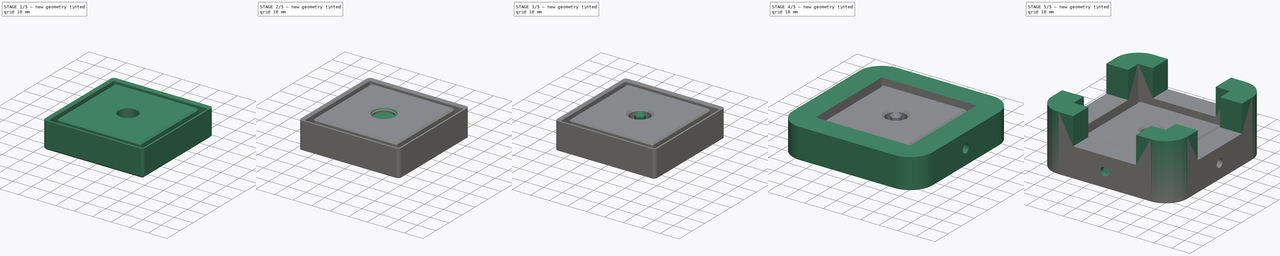
[diagram: build sequence overview — one tinted view per stage of 5, left to right]
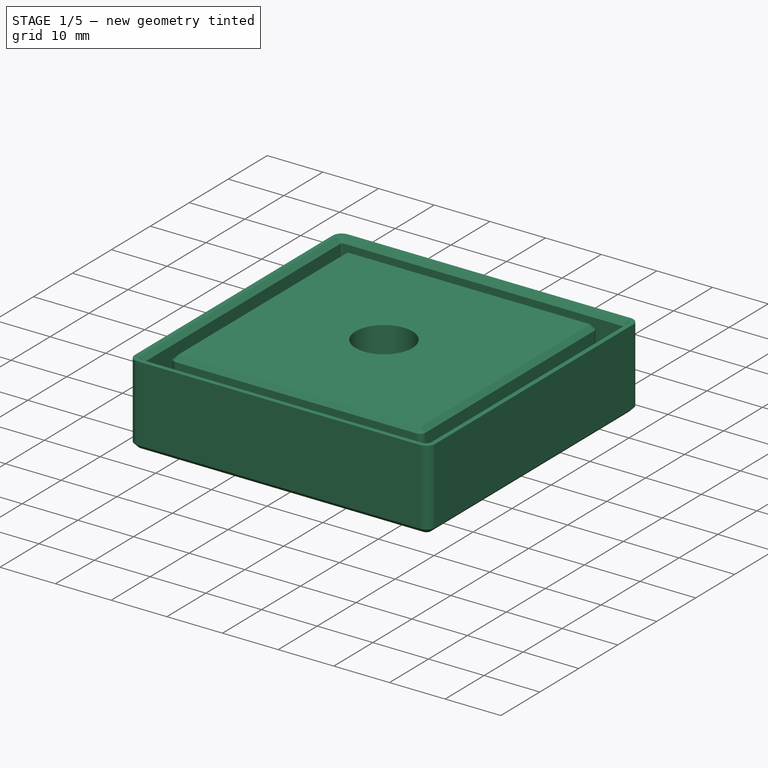
[diagram: stage 1 of 5 — iso view after this stage's code; geometry added in this stage tinted green]
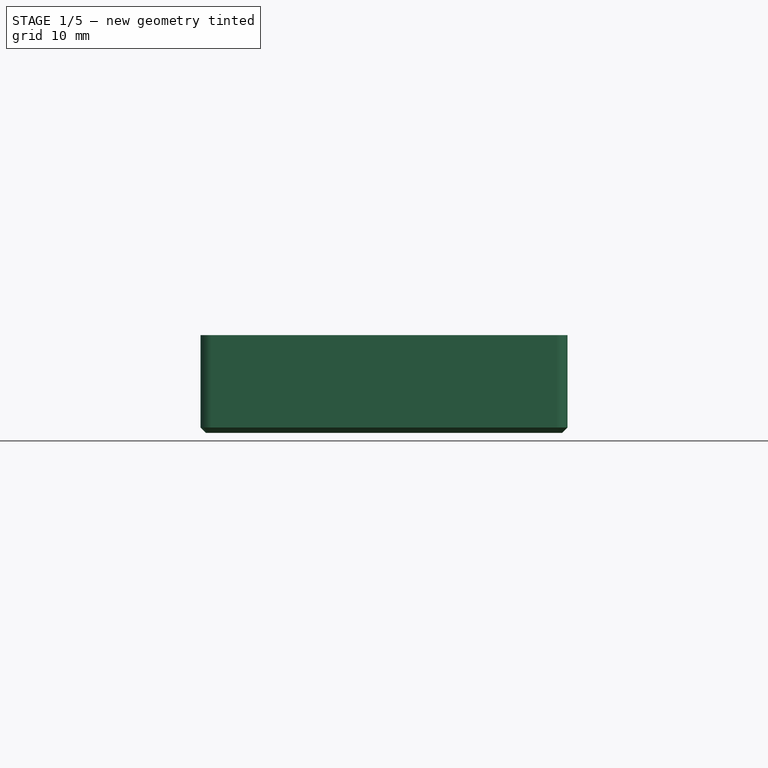
[diagram: stage 1 of 5 — front view after this stage's code; geometry added in this stage tinted green]
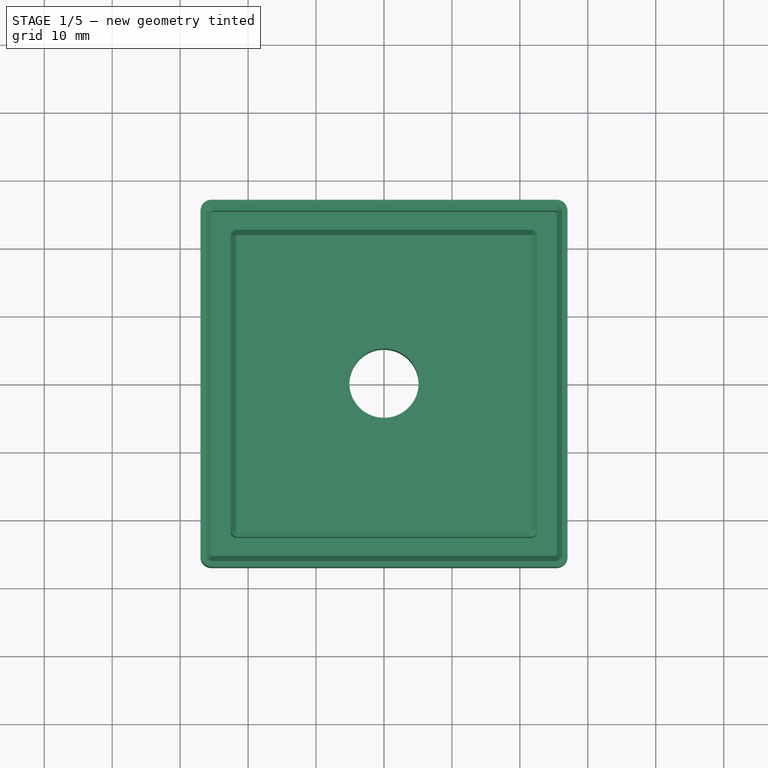
[diagram: stage 1 of 5 — top view after this stage's code; geometry added in this stage tinted green]
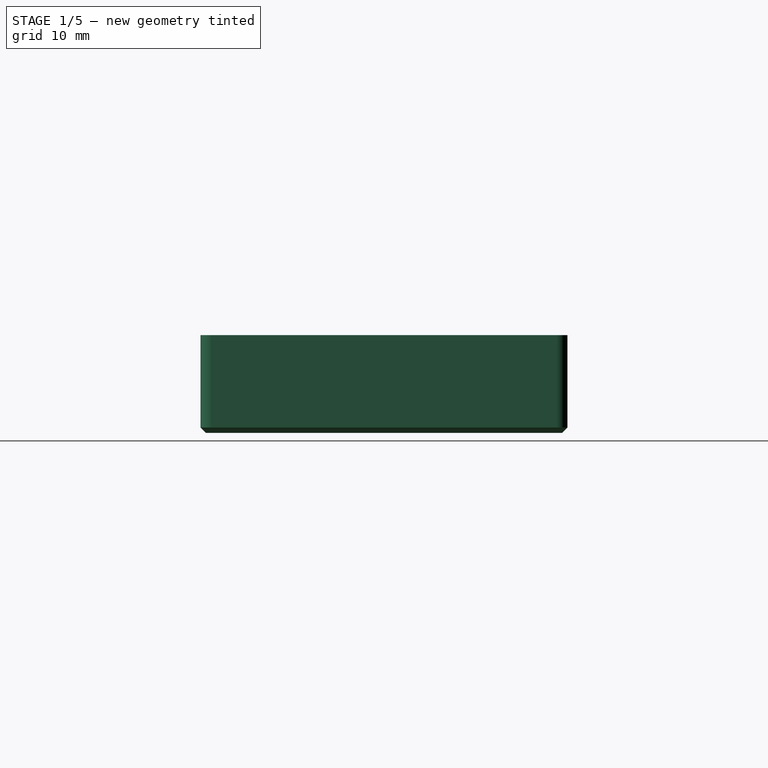
[diagram: stage 1 of 5 — right view after this stage's code; geometry added in this stage tinted green]
FCSTD DOCUMENT  (FreeCAD 1.0R39319 (Git))
Label: IkeaLackTools
License: All rights reserved
LicenseURL: http://en.wikipedia.org/wiki/All_rights_reserved
objects: Sketcher::SketchObject×21, PartDesign::Pocket×8, PartDesign::Pad×7, PartDesign::Body×6, PartDesign::Chamfer×6, Spreadsheet::Sheet×1, PartDesign::PolarPattern×1, PartDesign::SubtractiveLoft×1, PartDesign::Fillet×1, PartDesign::AdditiveLoft×1
note: 122 computed .brp shape members not serialized (recipe doc carries the construction recipe); baked Part::Feature solids carry a one-line shape summary decoded from their .brp

FEATURE [PartDesign::Body] Body003  label="LegEndBumper"
  AllowCompound = false
  Group = -> [Sketch013,Sketch014,AdditiveLoft,Sketch015,Pad004,Chamfer001]
  Origin = -> Origin003
  Tip = -> Chamfer001
FEATURE [Sketcher::SketchObject] Sketch020
  ArcFitTolerance = 0
  AttachmentSupport = -> [XY_Plane004]
  FullyConstrained = true
  MakeInternals = false
  MapMode = 5
  expr: Constraints[30] = <<Spreadsheet>>.LegInnerSize
  expr: Constraints[31] = <<Spreadsheet>>.LegOuterSize
  sketch-geometry (13):
    g0: LineSegment StartX=-22.6 StartY=22.6 StartZ=0 EndX=22.6 EndY=22.6 EndZ=0
    g1: LineSegment StartX=22.6 StartY=22.6 StartZ=0 EndX=22.6 EndY=-22.6 EndZ=0
    g2: LineSegment StartX=22.6 StartY=-22.6 StartZ=0 EndX=-22.6 EndY=-22.6 EndZ=0
    g3: LineSegment StartX=-22.6 StartY=-22.6 StartZ=0 EndX=-22.6 EndY=22.6 EndZ=0
    g4: LineSegment StartX=-27 StartY=27 StartZ=0 EndX=27 EndY=27 EndZ=0
    g5: LineSegment StartX=27 StartY=27 StartZ=0 EndX=27 EndY=-27 EndZ=0
    g6: LineSegment StartX=27 StartY=-27 StartZ=0 EndX=-27 EndY=-27 EndZ=0
    g7: LineSegment StartX=-27 StartY=-27 StartZ=0 EndX=-27 EndY=27 EndZ=0
    g8: LineSegment StartX=-25.4 StartY=25.4 StartZ=0 EndX=25.4 EndY=25.4 EndZ=0
    g9: LineSegment StartX=25.4 StartY=25.4 StartZ=0 EndX=25.4 EndY=-25.4 EndZ=0
    g10: LineSegment StartX=25.4 StartY=-25.4 StartZ=0 EndX=-25.4 EndY=-25.4 EndZ=0
    g11: LineSegment StartX=-25.4 StartY=-25.4 StartZ=0 EndX=-25.4 EndY=25.4 EndZ=0
    g12: GeomPoint [constr] X=0 Y=0 Z=0
  constraints (34):
    c: Horizontal(g0)
    c: Horizontal(g2)
    c: Vertical(g1)
    c: Vertical(g3)
    c: Horizontal(g4)
    c: Horizontal(g6)
    c: Vertical(g5)
    c: Vertical(g7)
    c: Horizontal(g8)
    c: Horizontal(g10)
    c: Vertical(g9)
    c: Vertical(g11)
    c: Equal(g3,g0)
    c: Equal(g7,g4)
    c: Coincident(g11,g10)
    c: Coincident(g6,g7)
    c: Coincident(g2,g3)
    c: Coincident(g1,g2)
    c: Coincident(g5,g6)
    c: Coincident(g9,g10)
    c: Coincident(g0,g1)
    c: Coincident(g4,g5)
    c: Coincident(g0,g3)
    c: Coincident(g4,g7)
    c: Coincident(g11,g8)
    c: Coincident(g8,g9)
    c: Symmetric(g2,g0,g12)
    c: Equal(g11,g8)
    c: Symmetric(g10,g8,g12)
    c: Symmetric(g6,g4,g12)
    c: DistanceX(g0,g0) = 45.2
    c: DistanceX(g8,g8) = 50.8
    c: DistanceY(g8,g4) = 1.6
    c: Coincident(g12,g-1)
FEATURE [Sketcher::SketchObject] Sketch017
  ArcFitTolerance = 0
  AttachmentOffset = pos=(0,0,14.4) rot=(0,0,1;0rad)
  AttachmentSupport = -> [XY_Plane004]
  ExternalGeometry = -> [Sketch020]
  FullyConstrained = true
  MakeInternals = false
  MapMode = 5
  Placement = pos=(0,0,14.4) rot=(0,0,1;0rad)
  expr: .AttachmentOffset.Base.z = <<LE_Base_001>>.Length
  sketch-geometry (16):
    g0: ArcOfCircle CenterX=-25.2 CenterY=25.2 CenterZ=0 NormalX=0 NormalY=0 NormalZ=1 AngleXU=0 Radius=0.2 StartAngle=1.5708 EndAngle=3.14159
    g1: LineSegment StartX=-25.2 StartY=25.4 StartZ=0 EndX=25.2 EndY=25.4 EndZ=0
    g2: ArcOfCircle CenterX=25.2 CenterY=25.2 CenterZ=0 NormalX=0 NormalY=0 NormalZ=1 AngleXU=0 Radius=0.2 StartAngle=-2.078e-13 EndAngle=1.5708
    g3: LineSegment StartX=25.4 StartY=25.2 StartZ=0 EndX=25.4 EndY=-25.2 EndZ=0
    g4: ArcOfCircle CenterX=25.2 CenterY=-25.2 CenterZ=0 NormalX=0 NormalY=0 NormalZ=1 AngleXU=0 Radius=0.2 StartAngle=4.71239 EndAngle=6.28319
    g5: LineSegment StartX=25.2 StartY=-25.4 StartZ=0 EndX=-25.2 EndY=-25.4 EndZ=0
    g6: ArcOfCircle CenterX=-25.2 CenterY=-25.2 CenterZ=0 NormalX=0 NormalY=0 NormalZ=1 AngleXU=0 Radius=0.2 StartAngle=3.14159 EndAngle=4.71239
    g7: LineSegment StartX=-25.4 StartY=-25.2 StartZ=0 EndX=-25.4 EndY=25.2 EndZ=0
    g8: ArcOfCircle CenterX=-21.6 CenterY=21.6 CenterZ=0 NormalX=0 NormalY=0 NormalZ=1 AngleXU=0 Radius=1 StartAngle=1.5708 EndAngle=3.14159
    g9: LineSegment StartX=-21.6 StartY=22.6 StartZ=0 EndX=21.6 EndY=22.6 EndZ=0
    g10: ArcOfCircle CenterX=21.6 CenterY=21.6 CenterZ=0 NormalX=0 NormalY=0 NormalZ=1 AngleXU=0 Radius=1 StartAngle=-9e-16 EndAngle=1.5708
    g11: LineSegment StartX=22.6 StartY=21.6 StartZ=0 EndX=22.6 EndY=-21.6 EndZ=0
    g12: ArcOfCircle CenterX=21.6 CenterY=-21.6 CenterZ=0 NormalX=0 NormalY=0 NormalZ=1 AngleXU=0 Radius=1 StartAngle=4.71239 EndAngle=6.28319
    g13: LineSegment StartX=21.6 StartY=-22.6 StartZ=0 EndX=-21.6 EndY=-22.6 EndZ=0
    g14: ArcOfCircle CenterX=-21.6 CenterY=-21.6 CenterZ=0 NormalX=0 NormalY=0 NormalZ=1 AngleXU=0 Radius=1 StartAngle=3.14159 EndAngle=4.71239
    g15: LineSegment StartX=-22.6 StartY=-21.6 StartZ=0 EndX=-22.6 EndY=21.6 EndZ=0
  constraints (40):
    c: Tangent(g0,g1) = 1.5708
    c: Tangent(g1,g2) = 1.5708
    c: Tangent(g2,g3) = 1.5708
    c: Tangent(g3,g4) = 1.5708
    c: Tangent(g4,g5) = 1.5708
    c: Tangent(g5,g6) = 1.5708
    c: Tangent(g6,g7) = 1.5708
    c: Tangent(g7,g0) = 1.5708
    c: Equal(g0,g2)
    c: Equal(g2,g4)
    c: Equal(g4,g6)
    c: Radius(g0) = 0.2
    c: PointOnObject(g5,g-6)
    c: PointOnObject(g4,g-6)
    c: PointOnObject(g3,g-5)
    c: PointOnObject(g2,g-5)
    c: PointOnObject(g1,g-3)
    c: PointOnObject(g0,g-3)
    c: PointOnObject(g0,g-4)
    c: PointOnObject(g6,g-4)
    c: Tangent(g8,g9) = 1.5708
    c: Tangent(g9,g10) = 1.5708
    c: Tangent(g10,g11) = 1.5708
    c: Tangent(g11,g12) = 1.5708
    c: Tangent(g12,g13) = 1.5708
    c: Tangent(g13,g14) = 1.5708
    c: Tangent(g14,g15) = 1.5708
    c: Tangent(g15,g8) = 1.5708
    c: Equal(g8,g10)
    c: Equal(g10,g12)
    c: Equal(g12,g14)
    c: Radius(g8) = 1
    c: PointOnObject(g8,g-7)
    c: PointOnObject(g9,g-7)
    c: PointOnObject(g10,g-9)
    c: PointOnObject(g11,g-9)
    c: PointOnObject(g12,g-10)
    c: PointOnObject(g13,g-10)
    c: PointOnObject(g14,g-8)
    c: PointOnObject(g8,g-8)
FEATURE [Sketcher::SketchObject] Sketch019  label="LE_BumperHole001"
  ArcFitTolerance = 0
  AttachmentOffset = pos=(0,0,14.4) rot=(0,0,1;0rad)
  AttachmentSupport = -> [XY_Plane004]
  ExternalGeometry = -> [Sketch020]
  FullyConstrained = true
  MakeInternals = false
  MapMode = 5
  Placement = pos=(0,0,14.4) rot=(0,0,1;0rad)
  expr: .AttachmentOffset.Base.z = <<LE_Base_001>>.Length
  sketch-geometry (1):
    g0: Circle CenterX=5.3e-15 CenterY=-1.3e-15 CenterZ=0 NormalX=0 NormalY=0 NormalZ=1 AngleXU=0 Radius=5.1
  constraints (2):
    c: Symmetric(g-3,g-4,g0)
    c: Diameter(g0) = 10.2
FEATURE [Sketcher::SketchObject] Sketch021  label="LE_Base001"
  ArcFitTolerance = 0
  AttachmentSupport = -> [XY_Plane004]
  ExternalGeometry = -> [Sketch020]
  FullyConstrained = true
  MakeInternals = false
  MapMode = 5
  sketch-geometry (21):
    g0: ArcOfCircle CenterX=-25.4 CenterY=25.4 CenterZ=0 NormalX=0 NormalY=0 NormalZ=1 AngleXU=0 Radius=1.6 StartAngle=1.5708 EndAngle=3.14159
    g1: LineSegment StartX=-25.4 StartY=27 StartZ=0 EndX=25.4 EndY=27 EndZ=0
    g2: ArcOfCircle CenterX=25.4 CenterY=25.4 CenterZ=0 NormalX=0 NormalY=0 NormalZ=1 AngleXU=0 Radius=1.6 StartAngle=-1.87e-14 EndAngle=1.5708
    g3: LineSegment StartX=27 StartY=25.4 StartZ=0 EndX=27 EndY=-25.4 EndZ=0
    g4: ArcOfCircle CenterX=25.4 CenterY=-25.4 CenterZ=0 NormalX=0 NormalY=0 NormalZ=1 AngleXU=0 Radius=1.6 StartAngle=4.71239 EndAngle=6.28319
    g5: LineSegment StartX=25.4 StartY=-27 StartZ=0 EndX=-25.4 EndY=-27 EndZ=0
    g6: ArcOfCircle CenterX=-25.4 CenterY=-25.4 CenterZ=0 NormalX=0 NormalY=0 NormalZ=1 AngleXU=0 Radius=1.6 StartAngle=3.14159 EndAngle=4.71239
    g7: LineSegment StartX=-27 StartY=-25.4 StartZ=0 EndX=-27 EndY=25.4 EndZ=0
    g8: LineSegment [constr] StartX=-25.4 StartY=27 StartZ=0 EndX=-25.4 EndY=25.4 EndZ=0
    g9: ArcOfCircle [constr] CenterX=-19.4 CenterY=19.4 CenterZ=0 NormalX=0 NormalY=0 NormalZ=1 AngleXU=0 Radius=1.6 StartAngle=1.5708 EndAngle=3.14159
    g10: LineSegment [constr] StartX=-19.4 StartY=21 StartZ=0 EndX=19.4 EndY=21 EndZ=0
    g11: ArcOfCircle [constr] CenterX=19.4 CenterY=19.4 CenterZ=0 NormalX=0 NormalY=0 NormalZ=1 AngleXU=0 Radius=1.6 StartAngle=5.53e-14 EndAngle=1.5708
    g12: LineSegment [constr] StartX=21 StartY=19.4 StartZ=0 EndX=21 EndY=-19.4 EndZ=0
    g13: ArcOfCircle [constr] CenterX=19.4 CenterY=-19.4 CenterZ=0 NormalX=0 NormalY=0 NormalZ=1 AngleXU=0 Radius=1.6 StartAngle=4.71239 EndAngle=6.28319
    g14: LineSegment [constr] StartX=19.4 StartY=-21 StartZ=0 EndX=-19.4 EndY=-21 EndZ=0
    g15: ArcOfCircle [constr] CenterX=-19.4 CenterY=-19.4 CenterZ=0 NormalX=0 NormalY=0 NormalZ=1 AngleXU=0 Radius=1.6 StartAngle=3.14159 EndAngle=4.71239
    g16: LineSegment [constr] StartX=-21 StartY=-19.4 StartZ=0 EndX=-21 EndY=19.4 EndZ=0
    g17: LineSegment [constr] StartX=-19.4 StartY=21 StartZ=0 EndX=-19.4 EndY=22.6 EndZ=0
    g18: LineSegment [constr] StartX=21 StartY=19.4 StartZ=0 EndX=22.6 EndY=19.4 EndZ=0
    g19: LineSegment [constr] StartX=19.4 StartY=-21 StartZ=0 EndX=19.4 EndY=-22.6 EndZ=0
    g20: LineSegment [constr] StartX=-21 StartY=-19.4 StartZ=0 EndX=-22.6 EndY=-19.4 EndZ=0
  constraints (53):
    c: Tangent(g0,g1) = 1.5708
    c: Tangent(g1,g2) = 1.5708
    c: Tangent(g2,g3) = 1.5708
    c: Tangent(g3,g4) = 1.5708
    c: Tangent(g4,g5) = 1.5708
    c: Tangent(g5,g6) = 1.5708
    c: Tangent(g6,g7) = 1.5708
    c: Tangent(g7,g0) = 1.5708
    c: Equal(g0,g2)
    c: Equal(g2,g4)
    c: Equal(g4,g6)
    c: PointOnObject(g0,g-3)
    c: Coincident(g-7,g0)
    c: PointOnObject(g1,g-3)
    c: PointOnObject(g2,g-5)
    c: PointOnObject(g3,g-5)
    c: PointOnObject(g4,g-6)
    c: PointOnObject(g5,g-6)
    c: PointOnObject(g6,g-4)
    c: Coincident(g8,g0)
    c: Coincident(g8,g0)
    c: Tangent(g9,g10) = 1.5708
    c: Tangent(g10,g11) = 1.5708
    c: Tangent(g11,g12) = 1.5708
    c: Tangent(g12,g13) = 1.5708
    c: Tangent(g13,g14) = 1.5708
    c: Tangent(g14,g15) = 1.5708
    c: Tangent(g15,g16) = 1.5708
    c: Tangent(g16,g9) = 1.5708
    c: Equal(g9,g11)
    c: Equal(g11,g13)
    c: Equal(g13,g15)
    c: Equal(g9,g0)
    c: Horizontal(g10)
    c: Horizontal(g14)
    c: Vertical(g12)
    c: Vertical(g16)
    c: Coincident(g17,g9)
    c: PointOnObject(g17,g-10)
    c: Vertical(g17)
    c: Coincident(g18,g11)
    c: PointOnObject(g18,g-9)
    c: Horizontal(g18)
    c: Coincident(g19,g13)
    c: PointOnObject(g19,g-11)
    c: Vertical(g19)
    c: Coincident(g20,g15)
    c: PointOnObject(g20,g-8)
    c: Horizontal(g20)
    c: Equal(g8,g17)
    c: Equal(g17,g18)
    c: Equal(g18,g19)
    c: Equal(g19,g20)
FEATURE [PartDesign::Pad] Pad005  label="LE_Base_001"
  Direction = (0,0,1)
  Length = 14.4
  Length2 = 10
  Profile = -> Sketch021
  ReferenceAxis = -> Sketch021 [N_Axis]
  Suppressed = false
  Type = 0
FEATURE [PartDesign::Pocket] Pocket007
  BaseFeature = -> Pad005
  Direction = (0,0,-1)
  Length = 12
  Length2 = 5
  Profile = -> Sketch017
  ReferenceAxis = -> Sketch017 [N_Axis]
  Suppressed = false
  Type = 0
  expr: Length = <<LE_Base_001>>.Length - 2.4 mm
FEATURE [PartDesign::Chamfer] Chamfer002
  Angle = 45
  Base = -> Pocket007 [Edge72,Edge28,Edge6]
  BaseFeature = -> Pocket007
  ChamferType = 0
  FlipDirection = false
  Size = 0.8
  Size2 = 1
  SupportTransform = false
  Suppressed = false
  UseAllEdges = false
FEATURE [PartDesign::Body] Body005  label="Test"
  AllowCompound = false
  Group = -> [Sketch022,Pad006,Chamfer003]
  Origin = -> Origin005
  Tip = -> Chamfer003
FEATURE [PartDesign::Pocket] Pocket008
  BaseFeature = -> Chamfer002
  Direction = (0,0,-1)
  Length = 5
  Length2 = 5
  Profile = -> Sketch019
  ReferenceAxis = -> Sketch019 [N_Axis]
  Refine = true
  Suppressed = false
  Type = 1
FEATURE [PartDesign::Chamfer] Chamfer004
  Angle = 45
  Base = -> Pocket008 [Edge38]
  BaseFeature = -> Pocket008
  ChamferType = 0
  FlipDirection = false
  Refine = true
  Size = 2
  Size2 = 1
  SupportTransform = false
  Suppressed = false
  UseAllEdges = false
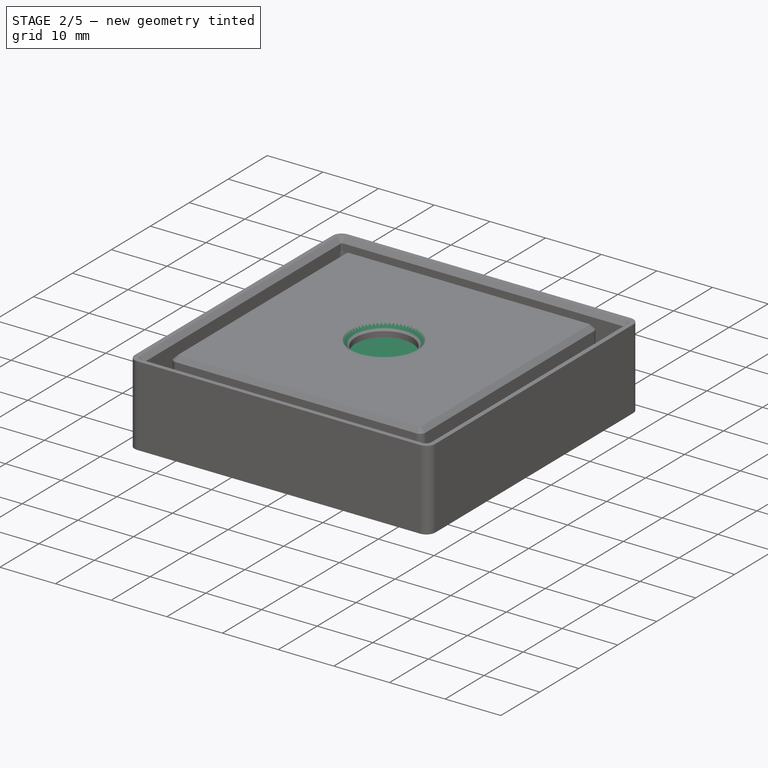
[diagram: stage 2 of 5 — iso view after this stage's code; geometry added in this stage tinted green]
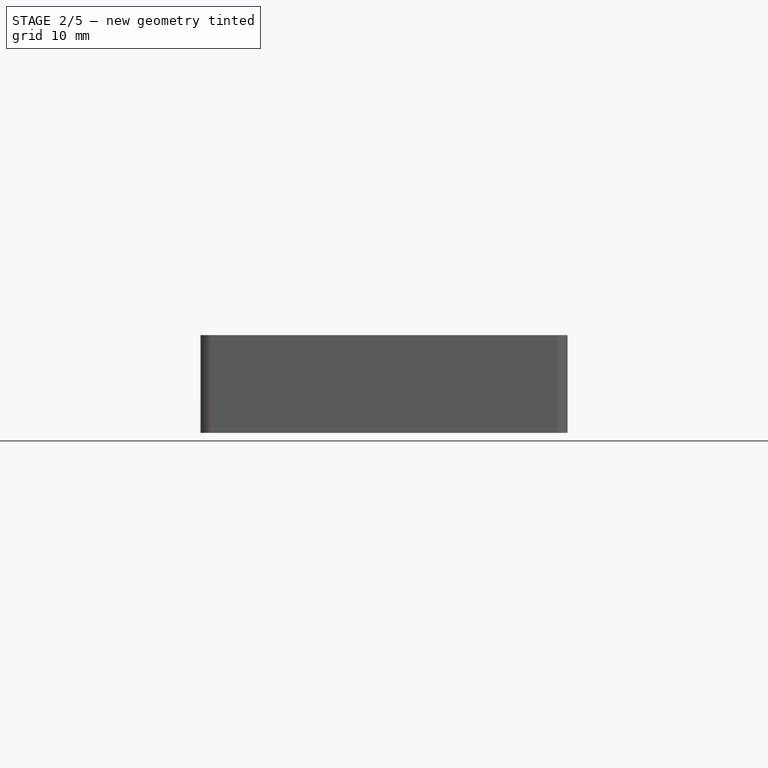
[diagram: stage 2 of 5 — front view after this stage's code; geometry added in this stage tinted green]
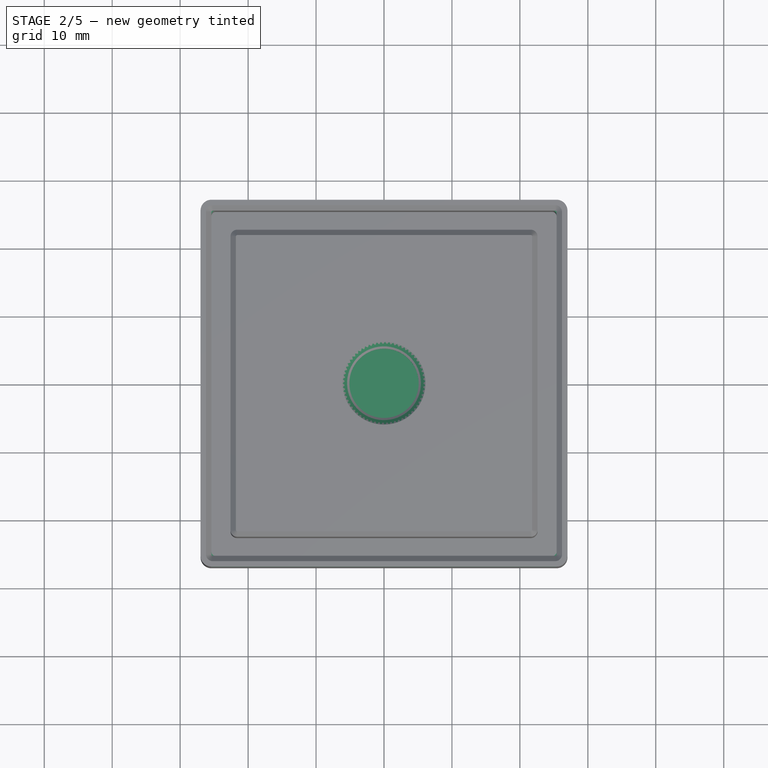
[diagram: stage 2 of 5 — top view after this stage's code; geometry added in this stage tinted green]
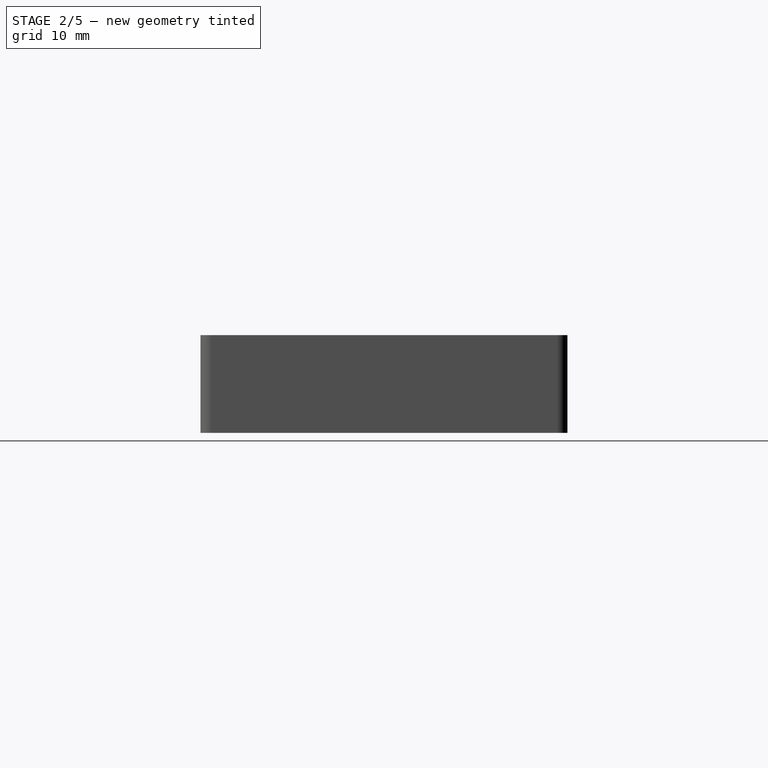
[diagram: stage 2 of 5 — right view after this stage's code; geometry added in this stage tinted green]
FEATURE [PartDesign::Body] Body  label="LegCutToolFrame"
  AllowCompound = false
  Group = -> [Sketch,Pad,Sketch001,Pocket,Sketch002,Pocket001,Sketch003,Pocket002,Sketch006,Pad002,PolarPattern]
  Origin = -> Origin
  Tip = -> PolarPattern
FEATURE [Sketcher::SketchObject] Sketch007
  ArcFitTolerance = 0
  AttachmentSupport = -> [XY_Plane002]
  FullyConstrained = true
  MakeInternals = false
  MapMode = 5
  expr: Constraints[30] = <<Spreadsheet>>.LegInnerSize
  expr: Constraints[31] = <<Spreadsheet>>.LegOuterSize
  sketch-geometry (13):
    g0: LineSegment StartX=-22.6 StartY=22.6 StartZ=0 EndX=22.6 EndY=22.6 EndZ=0
    g1: LineSegment StartX=22.6 StartY=22.6 StartZ=0 EndX=22.6 EndY=-22.6 EndZ=0
    g2: LineSegment StartX=22.6 StartY=-22.6 StartZ=0 EndX=-22.6 EndY=-22.6 EndZ=0
    g3: LineSegment StartX=-22.6 StartY=-22.6 StartZ=0 EndX=-22.6 EndY=22.6 EndZ=0
    g4: LineSegment StartX=-27 StartY=27 StartZ=0 EndX=27 EndY=27 EndZ=0
    g5: LineSegment StartX=27 StartY=27 StartZ=0 EndX=27 EndY=-27 EndZ=0
    g6: LineSegment StartX=27 StartY=-27 StartZ=0 EndX=-27 EndY=-27 EndZ=0
    g7: LineSegment StartX=-27 StartY=-27 StartZ=0 EndX=-27 EndY=27 EndZ=0
    g8: LineSegment StartX=-25.4 StartY=25.4 StartZ=0 EndX=25.4 EndY=25.4 EndZ=0
    g9: LineSegment StartX=25.4 StartY=25.4 StartZ=0 EndX=25.4 EndY=-25.4 EndZ=0
    g10: LineSegment StartX=25.4 StartY=-25.4 StartZ=0 EndX=-25.4 EndY=-25.4 EndZ=0
    g11: LineSegment StartX=-25.4 StartY=-25.4 StartZ=0 EndX=-25.4 EndY=25.4 EndZ=0
    g12: GeomPoint [constr] X=0 Y=0 Z=0
  constraints (34):
    c: Horizontal(g0)
    c: Horizontal(g2)
    c: Vertical(g1)
    c: Vertical(g3)
    c: Horizontal(g4)
    c: Horizontal(g6)
    c: Vertical(g5)
    c: Vertical(g7)
    c: Horizontal(g8)
    c: Horizontal(g10)
    c: Vertical(g9)
    c: Vertical(g11)
    c: Equal(g3,g0)
    c: Equal(g7,g4)
    c: Coincident(g11,g10)
    c: Coincident(g6,g7)
    c: Coincident(g2,g3)
    c: Coincident(g1,g2)
    c: Coincident(g5,g6)
    c: Coincident(g9,g10)
    c: Coincident(g0,g1)
    c: Coincident(g4,g5)
    c: Coincident(g0,g3)
    c: Coincident(g4,g7)
    c: Coincident(g11,g8)
    c: Coincident(g8,g9)
    c: Symmetric(g2,g0,g12)
    c: Equal(g11,g8)
    c: Symmetric(g10,g8,g12)
    c: Symmetric(g6,g4,g12)
    c: DistanceX(g0,g0) = 45.2
    c: DistanceX(g8,g8) = 50.8
    c: DistanceY(g8,g4) = 1.6
    c: Coincident(g12,g-1)
FEATURE [Sketcher::SketchObject] Sketch008  label="LE_Base"
  ArcFitTolerance = 0
  AttachmentSupport = -> [XY_Plane002]
  ExternalGeometry = -> [Sketch007]
  FullyConstrained = true
  MakeInternals = false
  MapMode = 5
  sketch-geometry (21):
    g0: ArcOfCircle CenterX=-25.4 CenterY=25.4 CenterZ=0 NormalX=0 NormalY=0 NormalZ=1 AngleXU=0 Radius=1.6 StartAngle=1.5708 EndAngle=3.14159
    g1: LineSegment StartX=-25.4 StartY=27 StartZ=0 EndX=25.4 EndY=27 EndZ=0
    g2: ArcOfCircle CenterX=25.4 CenterY=25.4 CenterZ=0 NormalX=0 NormalY=0 NormalZ=1 AngleXU=0 Radius=1.6 StartAngle=-1.87e-14 EndAngle=1.5708
    g3: LineSegment StartX=27 StartY=25.4 StartZ=0 EndX=27 EndY=-25.4 EndZ=0
    g4: ArcOfCircle CenterX=25.4 CenterY=-25.4 CenterZ=0 NormalX=0 NormalY=0 NormalZ=1 AngleXU=0 Radius=1.6 StartAngle=4.71239 EndAngle=6.28319
    g5: LineSegment StartX=25.4 StartY=-27 StartZ=0 EndX=-25.4 EndY=-27 EndZ=0
    g6: ArcOfCircle CenterX=-25.4 CenterY=-25.4 CenterZ=0 NormalX=0 NormalY=0 NormalZ=1 AngleXU=0 Radius=1.6 StartAngle=3.14159 EndAngle=4.71239
    g7: LineSegment StartX=-27 StartY=-25.4 StartZ=0 EndX=-27 EndY=25.4 EndZ=0
    g8: LineSegment [constr] StartX=-25.4 StartY=27 StartZ=0 EndX=-25.4 EndY=25.4 EndZ=0
    g9: ArcOfCircle [constr] CenterX=-19.4 CenterY=19.4 CenterZ=0 NormalX=0 NormalY=0 NormalZ=1 AngleXU=0 Radius=1.6 StartAngle=1.5708 EndAngle=3.14159
    g10: LineSegment [constr] StartX=-19.4 StartY=21 StartZ=0 EndX=19.4 EndY=21 EndZ=0
    g11: ArcOfCircle [constr] CenterX=19.4 CenterY=19.4 CenterZ=0 NormalX=0 NormalY=0 NormalZ=1 AngleXU=0 Radius=1.6 StartAngle=5.53e-14 EndAngle=1.5708
    g12: LineSegment [constr] StartX=21 StartY=19.4 StartZ=0 EndX=21 EndY=-19.4 EndZ=0
    g13: ArcOfCircle [constr] CenterX=19.4 CenterY=-19.4 CenterZ=0 NormalX=0 NormalY=0 NormalZ=1 AngleXU=0 Radius=1.6 StartAngle=4.71239 EndAngle=6.28319
    g14: LineSegment [constr] StartX=19.4 StartY=-21 StartZ=0 EndX=-19.4 EndY=-21 EndZ=0
    g15: ArcOfCircle [constr] CenterX=-19.4 CenterY=-19.4 CenterZ=0 NormalX=0 NormalY=0 NormalZ=1 AngleXU=0 Radius=1.6 StartAngle=3.14159 EndAngle=4.71239
    g16: LineSegment [constr] StartX=-21 StartY=-19.4 StartZ=0 EndX=-21 EndY=19.4 EndZ=0
    g17: LineSegment [constr] StartX=-19.4 StartY=21 StartZ=0 EndX=-19.4 EndY=22.6 EndZ=0
    g18: LineSegment [constr] StartX=21 StartY=19.4 StartZ=0 EndX=22.6 EndY=19.4 EndZ=0
    g19: LineSegment [constr] StartX=19.4 StartY=-21 StartZ=0 EndX=19.4 EndY=-22.6 EndZ=0
    g20: LineSegment [constr] StartX=-21 StartY=-19.4 StartZ=0 EndX=-22.6 EndY=-19.4 EndZ=0
  constraints (53):
    c: Tangent(g0,g1) = 1.5708
    c: Tangent(g1,g2) = 1.5708
    c: Tangent(g2,g3) = 1.5708
    c: Tangent(g3,g4) = 1.5708
    c: Tangent(g4,g5) = 1.5708
    c: Tangent(g5,g6) = 1.5708
    c: Tangent(g6,g7) = 1.5708
    c: Tangent(g7,g0) = 1.5708
    c: Equal(g0,g2)
    c: Equal(g2,g4)
    c: Equal(g4,g6)
    c: PointOnObject(g0,g-3)
    c: Coincident(g-7,g0)
    c: PointOnObject(g1,g-3)
    c: PointOnObject(g2,g-5)
    c: PointOnObject(g3,g-5)
    c: PointOnObject(g4,g-6)
    c: PointOnObject(g5,g-6)
    c: PointOnObject(g6,g-4)
    c: Coincident(g8,g0)
    c: Coincident(g8,g0)
    c: Tangent(g9,g10) = 1.5708
    c: Tangent(g10,g11) = 1.5708
    c: Tangent(g11,g12) = 1.5708
    c: Tangent(g12,g13) = 1.5708
    c: Tangent(g13,g14) = 1.5708
    c: Tangent(g14,g15) = 1.5708
    c: Tangent(g15,g16) = 1.5708
    c: Tangent(g16,g9) = 1.5708
    c: Equal(g9,g11)
    c: Equal(g11,g13)
    c: Equal(g13,g15)
    c: Equal(g9,g0)
    c: Horizontal(g10)
    c: Horizontal(g14)
    c: Vertical(g12)
    c: Vertical(g16)
    c: Coincident(g17,g9)
    c: PointOnObject(g17,g-10)
    c: Vertical(g17)
    c: Coincident(g18,g11)
    c: PointOnObject(g18,g-9)
    c: Horizontal(g18)
    c: Coincident(g19,g13)
    c: PointOnObject(g19,g-11)
    c: Vertical(g19)
    c: Coincident(g20,g15)
    c: PointOnObject(g20,g-8)
    c: Horizontal(g20)
    c: Equal(g8,g17)
    c: Equal(g17,g18)
    c: Equal(g18,g19)
    c: Equal(g19,g20)
FEATURE [PartDesign::Pad] Pad003  label="LE_Base_"
  Direction = (0,0,1)
  Length = 12.4
  Length2 = 10
  Profile = -> Sketch008
  ReferenceAxis = -> Sketch008 [N_Axis]
  Suppressed = false
  Type = 0
FEATURE [Sketcher::SketchObject] Sketch009
  ArcFitTolerance = 0
  AttachmentOffset = pos=(0,0,12.4) rot=(0,0,1;0rad)
  AttachmentSupport = -> [XY_Plane002]
  ExternalGeometry = -> [Sketch007]
  FullyConstrained = true
  MakeInternals = false
  MapMode = 5
  Placement = pos=(0,0,12.4) rot=(0,0,1;0rad)
  expr: .AttachmentOffset.Base.z = <<LE_Base_>>.Length
  sketch-geometry (16):
    g0: ArcOfCircle CenterX=-24.8 CenterY=24.8 CenterZ=0 NormalX=0 NormalY=0 NormalZ=1 AngleXU=0 Radius=0.6 StartAngle=1.5708 EndAngle=3.14159
    g1: LineSegment StartX=-24.8 StartY=25.4 StartZ=0 EndX=24.8 EndY=25.4 EndZ=0
    g2: ArcOfCircle CenterX=24.8 CenterY=24.8 CenterZ=0 NormalX=0 NormalY=0 NormalZ=1 AngleXU=0 Radius=0.6 StartAngle=2.7e-15 EndAngle=1.5708
    g3: LineSegment StartX=25.4 StartY=24.8 StartZ=0 EndX=25.4 EndY=-24.8 EndZ=0
    g4: ArcOfCircle CenterX=24.8 CenterY=-24.8 CenterZ=0 NormalX=0 NormalY=0 NormalZ=1 AngleXU=0 Radius=0.6 StartAngle=4.71239 EndAngle=6.28319
    g5: LineSegment StartX=24.8 StartY=-25.4 StartZ=0 EndX=-24.8 EndY=-25.4 EndZ=0
    g6: ArcOfCircle CenterX=-24.8 CenterY=-24.8 CenterZ=0 NormalX=0 NormalY=0 NormalZ=1 AngleXU=0 Radius=0.6 StartAngle=3.14159 EndAngle=4.71239
    g7: LineSegment StartX=-25.4 StartY=-24.8 StartZ=0 EndX=-25.4 EndY=24.8 EndZ=0
    g8: ArcOfCircle CenterX=-21.6 CenterY=21.6 CenterZ=0 NormalX=0 NormalY=0 NormalZ=1 AngleXU=0 Radius=1 StartAngle=1.5708 EndAngle=3.14159
    g9: LineSegment StartX=-21.6 StartY=22.6 StartZ=0 EndX=21.6 EndY=22.6 EndZ=0
    g10: ArcOfCircle CenterX=21.6 CenterY=21.6 CenterZ=0 NormalX=0 NormalY=0 NormalZ=1 AngleXU=0 Radius=1 StartAngle=-9e-16 EndAngle=1.5708
    g11: LineSegment StartX=22.6 StartY=21.6 StartZ=0 EndX=22.6 EndY=-21.6 EndZ=0
    g12: ArcOfCircle CenterX=21.6 CenterY=-21.6 CenterZ=0 NormalX=0 NormalY=0 NormalZ=1 AngleXU=0 Radius=1 StartAngle=4.71239 EndAngle=6.28319
    g13: LineSegment StartX=21.6 StartY=-22.6 StartZ=0 EndX=-21.6 EndY=-22.6 EndZ=0
    g14: ArcOfCircle CenterX=-21.6 CenterY=-21.6 CenterZ=0 NormalX=0 NormalY=0 NormalZ=1 AngleXU=0 Radius=1 StartAngle=3.14159 EndAngle=4.71239
    g15: LineSegment StartX=-22.6 StartY=-21.6 StartZ=0 EndX=-22.6 EndY=21.6 EndZ=0
  constraints (40):
    c: Tangent(g0,g1) = 1.5708
    c: Tangent(g1,g2) = 1.5708
    c: Tangent(g2,g3) = 1.5708
    c: Tangent(g3,g4) = 1.5708
    c: Tangent(g4,g5) = 1.5708
    c: Tangent(g5,g6) = 1.5708
    c: Tangent(g6,g7) = 1.5708
    c: Tangent(g7,g0) = 1.5708
    c: Equal(g0,g2)
    c: Equal(g2,g4)
    c: Equal(g4,g6)
    c: Radius(g0) = 0.6
    c: PointOnObject(g5,g-6)
    c: PointOnObject(g4,g-6)
    c: PointOnObject(g3,g-5)
    c: PointOnObject(g2,g-5)
    c: PointOnObject(g1,g-3)
    c: PointOnObject(g0,g-3)
    c: PointOnObject(g0,g-4)
    c: PointOnObject(g6,g-4)
    c: Tangent(g8,g9) = 1.5708
    c: Tangent(g9,g10) = 1.5708
    c: Tangent(g10,g11) = 1.5708
    c: Tangent(g11,g12) = 1.5708
    c: Tangent(g12,g13) = 1.5708
    c: Tangent(g13,g14) = 1.5708
    c: Tangent(g14,g15) = 1.5708
    c: Tangent(g15,g8) = 1.5708
    c: Equal(g8,g10)
    c: Equal(g10,g12)
    c: Equal(g12,g14)
    c: Radius(g8) = 1
    c: PointOnObject(g8,g-7)
    c: PointOnObject(g9,g-7)
    c: PointOnObject(g10,g-9)
    c: PointOnObject(g11,g-9)
    c: PointOnObject(g12,g-10)
    c: PointOnObject(g13,g-10)
    c: PointOnObject(g14,g-8)
    c: PointOnObject(g8,g-8)
FEATURE [PartDesign::Pocket] Pocket004
  BaseFeature = -> Pad003
  Direction = (0,0,-1)
  Length = 10
  Length2 = 5
  Profile = -> Sketch009
  ReferenceAxis = -> Sketch009 [N_Axis]
  Suppressed = false
  Type = 0
  expr: Length = <<LE_Base_>>.Length - 2.4 mm
FEATURE [Sketcher::SketchObject] Sketch022
  ArcFitTolerance = 1e-06
  AttachmentSupport = -> [XY_Plane005]
  FullyConstrained = true
  MakeInternals = false
  MapMode = 5
  sketch-geometry (2):
    g0: Circle CenterX=0 CenterY=0 CenterZ=0 NormalX=0 NormalY=0 NormalZ=1 AngleXU=0 Radius=20
    g1: Circle CenterX=0 CenterY=0 CenterZ=0 NormalX=0 NormalY=0 NormalZ=1 AngleXU=0 Radius=5.05
  constraints (4):
    c: Coincident(g0,g-1)
    c: Diameter(g1) = 10.1
    c: Coincident(g1,g0)
    c: Diameter(g0) = 40
FEATURE [PartDesign::Pad] Pad006
  Direction = (0,0,1)
  Length = 10
  Length2 = 10
  Profile = -> Sketch022
  ReferenceAxis = -> Sketch022 [N_Axis]
  Refine = true
  Suppressed = false
  Type = 0
FEATURE [PartDesign::Chamfer] Chamfer003
  Angle = 45
  Base = -> Pad006 [Face4,Face3]
  BaseFeature = -> Pad006
  ChamferType = 0
  FlipDirection = false
  Refine = true
  Size = 1
  Size2 = 1
  SupportTransform = false
  Suppressed = false
  UseAllEdges = false
FEATURE [PartDesign::Chamfer] Chamfer005
  Angle = 45
  Base = -> Chamfer004 [Edge29]
  BaseFeature = -> Chamfer004
  ChamferType = 0
  FlipDirection = false
  Refine = true
  Size = 1
  Size2 = 1
  SupportTransform = false
  Suppressed = false
  UseAllEdges = false
FEATURE [PartDesign::Body] Body004  label="LegEndRoller"
  AllowCompound = false
  Group = -> [Sketch020,Sketch021,Pad005,Sketch017,Pocket007,Chamfer002,Sketch019,Pocket008,Chamfer004,Chamfer005]
  Origin = -> Origin004
  Tip = -> Chamfer005
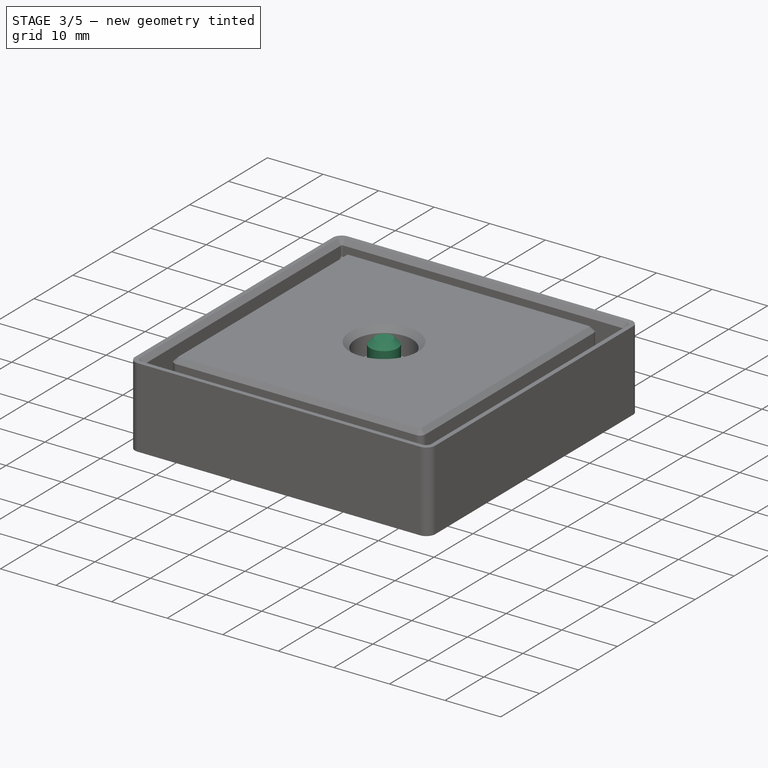
[diagram: stage 3 of 5 — iso view after this stage's code; geometry added in this stage tinted green]
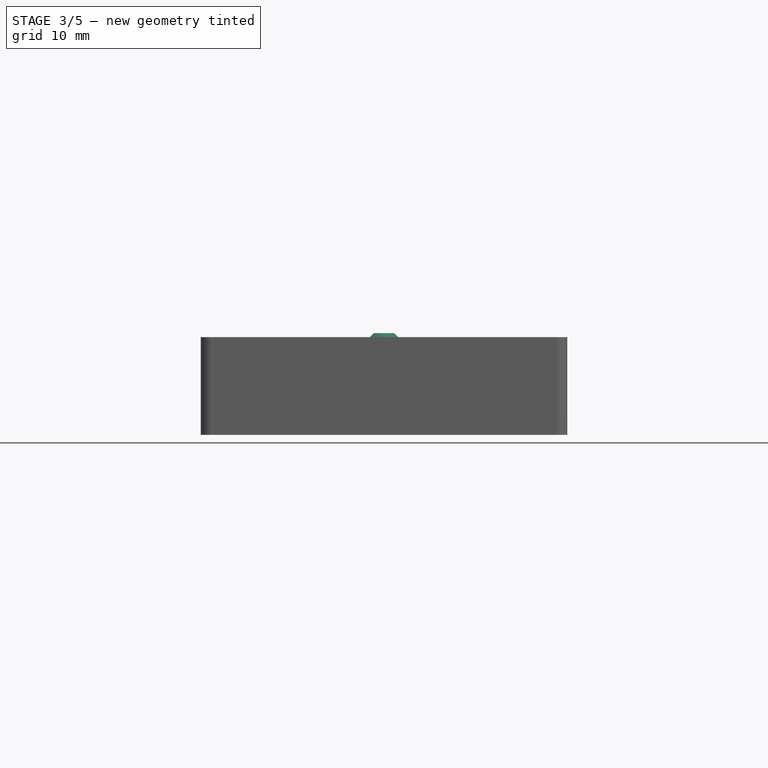
[diagram: stage 3 of 5 — front view after this stage's code; geometry added in this stage tinted green]
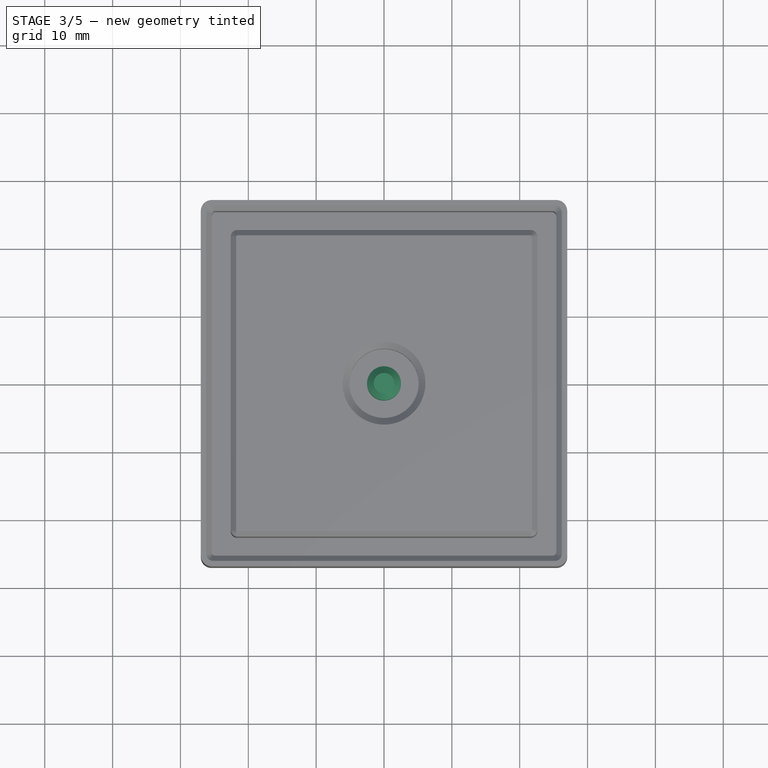
[diagram: stage 3 of 5 — top view after this stage's code; geometry added in this stage tinted green]
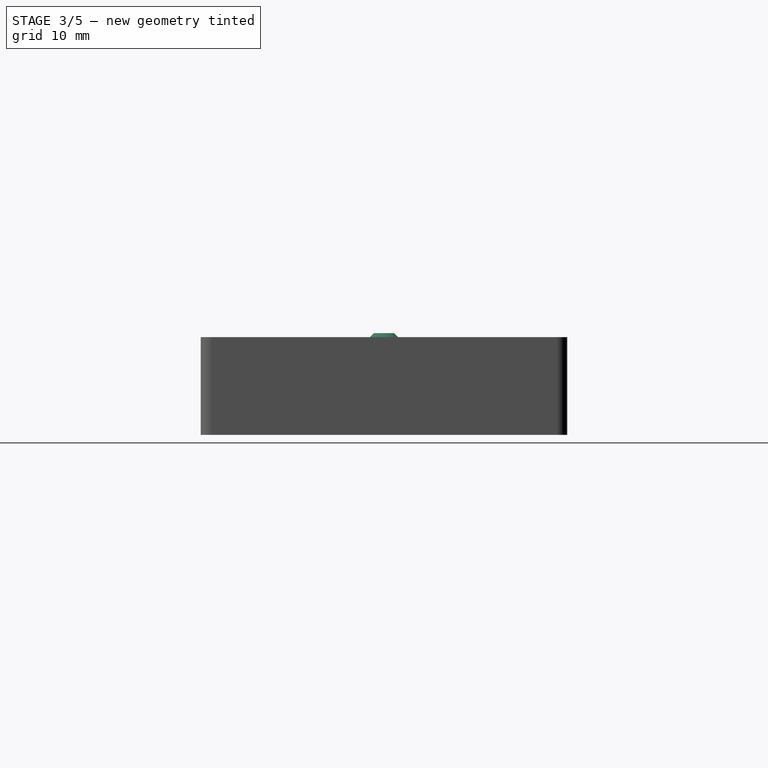
[diagram: stage 3 of 5 — right view after this stage's code; geometry added in this stage tinted green]
FEATURE [Sketcher::SketchObject] Sketch010  label="LE_BumperHolderBottom"
  ArcFitTolerance = 0
  AttachmentOffset = pos=(0,0,2.4) rot=(0,0,1;0rad)
  AttachmentSupport = -> [XY_Plane002]
  ExternalGeometry = -> [Sketch007]
  FullyConstrained = true
  MakeInternals = false
  MapMode = 5
  Placement = pos=(0,0,2.4) rot=(0,0,1;0rad)
  expr: .AttachmentOffset.Base.z = <<LE_Base_>>.Length - <<Pocket004>>.Length
  sketch-geometry (1):
    g0: Circle CenterX=2.1e-15 CenterY=1.1e-15 CenterZ=0 NormalX=0 NormalY=0 NormalZ=1 AngleXU=0 Radius=10
  constraints (2):
    c: Radius(g0) = 10  'R'
    c: Symmetric(g-3,g-4,g0)
FEATURE [Sketcher::SketchObject] Sketch011  label="LE_BumperHolderTop"
  ArcFitTolerance = 0
  AttachmentOffset = pos=(0,0,12.4) rot=(0,0,1;0rad)
  AttachmentSupport = -> [XY_Plane002]
  ExternalGeometry = -> [Sketch007]
  FullyConstrained = true
  MakeInternals = false
  MapMode = 5
  Placement = pos=(0,0,12.4) rot=(0,0,1;0rad)
  expr: .AttachmentOffset.Base.z = <<LE_Base_>>.Length
  sketch-geometry (13):
    g0: ArcOfCircle CenterX=-11 CenterY=11 CenterZ=0 NormalX=0 NormalY=0 NormalZ=1 AngleXU=0 Radius=10 StartAngle=1.5708 EndAngle=3.14159
    g1: LineSegment StartX=-11 StartY=21 StartZ=0 EndX=11 EndY=21 EndZ=0
    g2: ArcOfCircle CenterX=11 CenterY=11 CenterZ=0 NormalX=0 NormalY=0 NormalZ=1 AngleXU=0 Radius=10 StartAngle=2e-16 EndAngle=1.5708
    g3: LineSegment StartX=21 StartY=11 StartZ=0 EndX=21 EndY=-11 EndZ=0
    g4: ArcOfCircle CenterX=11 CenterY=-11 CenterZ=0 NormalX=0 NormalY=0 NormalZ=1 AngleXU=0 Radius=10 StartAngle=4.71239 EndAngle=6.28319
    g5: LineSegment StartX=11 StartY=-21 StartZ=0 EndX=-11 EndY=-21 EndZ=0
    g6: ArcOfCircle CenterX=-11 CenterY=-11 CenterZ=0 NormalX=0 NormalY=0 NormalZ=1 AngleXU=0 Radius=10 StartAngle=3.14159 EndAngle=4.71239
    g7: LineSegment StartX=-21 StartY=-11 StartZ=0 EndX=-21 EndY=11 EndZ=0
    g8: LineSegment [constr] StartX=-25.4 StartY=25.4 StartZ=0 EndX=-25.4 EndY=27 EndZ=0
    g9: LineSegment [constr] StartX=-11 StartY=21 StartZ=0 EndX=-11 EndY=22.6 EndZ=0
    g10: LineSegment [constr] StartX=21 StartY=11 StartZ=0 EndX=22.6 EndY=11 EndZ=0
    g11: LineSegment [constr] StartX=11 StartY=-21 StartZ=0 EndX=11 EndY=-22.6 EndZ=0
    g12: LineSegment [constr] StartX=-21 StartY=-11 StartZ=0 EndX=-22.6 EndY=-11 EndZ=0
  constraints (35):
    c: Tangent(g0,g1) = 1.5708
    c: Tangent(g1,g2) = 1.5708
    c: Tangent(g2,g3) = 1.5708
    c: Tangent(g3,g4) = 1.5708
    c: Tangent(g4,g5) = 1.5708
    c: Tangent(g5,g6) = 1.5708
    c: Tangent(g6,g7) = 1.5708
    c: Tangent(g7,g0) = 1.5708
    c: Horizontal(g1)
    c: Horizontal(g5)
    c: Vertical(g3)
    c: Vertical(g7)
    c: Equal(g0,g2)
    c: Equal(g2,g4)
    c: Equal(g4,g6)
    c: Coincident(g8,g-4)
    c: PointOnObject(g8,g-3)
    c: Vertical(g8)
    c: Coincident(g9,g0)
    c: PointOnObject(g9,g-5)
    c: Vertical(g9)
    c: Coincident(g10,g2)
    c: PointOnObject(g10,g-8)
    c: Horizontal(g10)
    c: Coincident(g11,g4)
    c: PointOnObject(g11,g-7)
    c: Vertical(g11)
    c: Coincident(g12,g6)
    c: PointOnObject(g12,g-6)
    c: Horizontal(g12)
    c: Radius(g0) = 10
    c: Equal(g8,g9)
    c: Equal(g9,g10)
    c: Equal(g10,g11)
    c: Equal(g11,g12)
FEATURE [Sketcher::SketchObject] Sketch012  label="LE_BumperHole"
  ArcFitTolerance = 0
  AttachmentOffset = pos=(0,0,2.4) rot=(0,0,1;0rad)
  AttachmentSupport = -> [XY_Plane002]
  ExternalGeometry = -> [Sketch007]
  FullyConstrained = true
  MakeInternals = false
  MapMode = 5
  Placement = pos=(0,0,2.4) rot=(0,0,1;0rad)
  expr: .AttachmentOffset.Base.z = <<LE_BumperHolderBottom>>.AttachmentOffset.Base.z
  sketch-geometry (1):
    g0: Circle CenterX=5.3e-15 CenterY=-1.3e-15 CenterZ=0 NormalX=0 NormalY=0 NormalZ=1 AngleXU=0 Radius=2.5
  constraints (2):
    c: Symmetric(g-3,g-4,g0)
    c: Radius(g0) = 2.5  'R'
FEATURE [PartDesign::Chamfer] Chamfer
  Angle = 45
  Base = -> Pocket004 [Edge72,Edge28]
  BaseFeature = -> Pocket004
  ChamferType = 0
  FlipDirection = false
  Size = 0.8
  Size2 = 1
  SupportTransform = false
  Suppressed = false
  UseAllEdges = false
FEATURE [PartDesign::SubtractiveLoft] SubtractiveLoft  label="LE_BumperHolder"
  BaseFeature = -> Chamfer
  Closed = false
  Profile = -> Sketch010
  Ruled = false
  Sections = -> [Sketch011]
  Suppressed = false
FEATURE [PartDesign::Body] Body002  label="LegEnd"
  AllowCompound = false
  Group = -> [Sketch007,Sketch008,Pad003,Sketch009,Pocket004,Sketch010,Sketch011,Chamfer,SubtractiveLoft,Sketch012,Pocket005,Fillet]
  Origin = -> Origin002
  Tip = -> Fillet
FEATURE [Sketcher::SketchObject] Sketch013
  ArcFitTolerance = 0
  AttachmentSupport = -> [XY_Plane003]
  FullyConstrained = true
  MakeInternals = false
  MapMode = 5
  sketch-geometry (1):
    g0: Circle CenterX=0 CenterY=0 CenterZ=0 NormalX=0 NormalY=0 NormalZ=1 AngleXU=0 Radius=8
  constraints (2):
    c: Coincident(g0,g-1)
    c: Radius(g0) = 8
FEATURE [Sketcher::SketchObject] Sketch014
  ArcFitTolerance = 0
  AttachmentOffset = pos=(0,0,10) rot=(0,0,1;0rad)
  AttachmentSupport = -> [XY_Plane003]
  ExternalGeometry = -> [Sketch013]
  FullyConstrained = true
  MakeInternals = false
  MapMode = 5
  Placement = pos=(0,0,10) rot=(0,0,1;0rad)
  sketch-geometry (1):
    g0: Circle CenterX=0 CenterY=0 CenterZ=0 NormalX=0 NormalY=0 NormalZ=1 AngleXU=0 Radius=16
  constraints (2):
    c: Radius(g0) = 16
    c: Coincident(g0,g-3)
FEATURE [PartDesign::AdditiveLoft] AdditiveLoft
  Closed = false
  Profile = -> Sketch013
  Ruled = false
  Sections = -> [Sketch014]
  Suppressed = false
FEATURE [Sketcher::SketchObject] Sketch015
  ArcFitTolerance = 0
  AttachmentOffset = pos=(0,0,10) rot=(0,0,1;0rad)
  AttachmentSupport = -> [XY_Plane003]
  ExternalGeometry = -> [Sketch013]
  FullyConstrained = true
  MakeInternals = false
  MapMode = 5
  Placement = pos=(0,0,10) rot=(0,0,1;0rad)
  expr: .AttachmentOffset.Base.z = <<Sketch014>>.AttachmentOffset.Base.z
  expr: Constraints[1] = <<LE_BumperHole>>.Constraints.R
  sketch-geometry (1):
    g0: Circle CenterX=0 CenterY=0 CenterZ=0 NormalX=0 NormalY=0 NormalZ=1 AngleXU=0 Radius=2.5
  constraints (2):
    c: Coincident(g0,g-3)
    c: Radius(g0) = 2.5
FEATURE [PartDesign::Pad] Pad004
  BaseFeature = -> AdditiveLoft
  Direction = (0,0,1)
  Length = 5
  Length2 = 10
  Profile = -> Sketch015
  ReferenceAxis = -> Sketch015 [N_Axis]
  Suppressed = false
  Type = 0
FEATURE [PartDesign::Chamfer] Chamfer001
  Angle = 45
  Base = -> Pad004 [Edge6]
  BaseFeature = -> Pad004
  ChamferType = 0
  FlipDirection = false
  Size = 1
  Size2 = 1
  SupportTransform = false
  Suppressed = false
  UseAllEdges = false
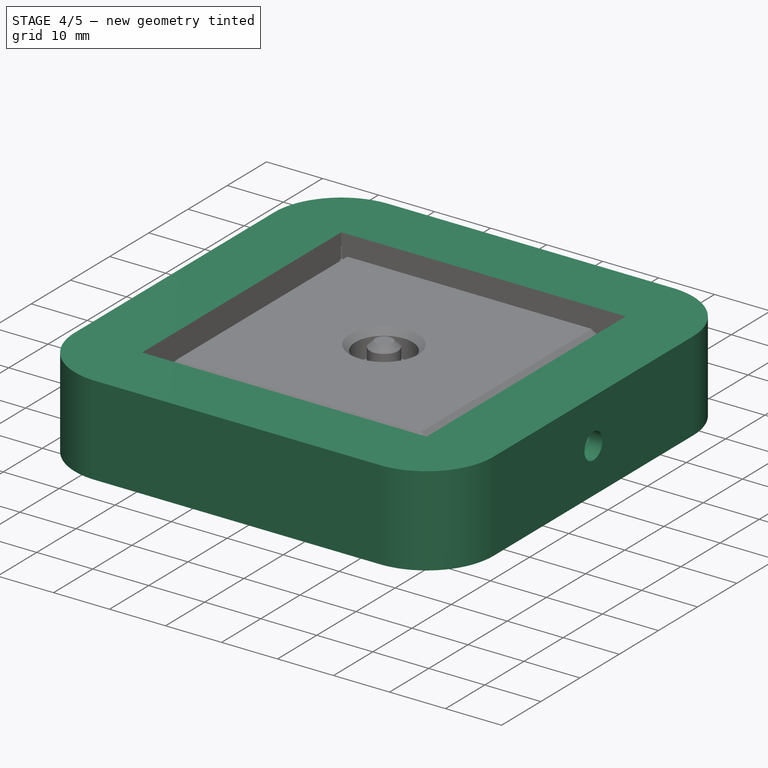
[diagram: stage 4 of 5 — iso view after this stage's code; geometry added in this stage tinted green]
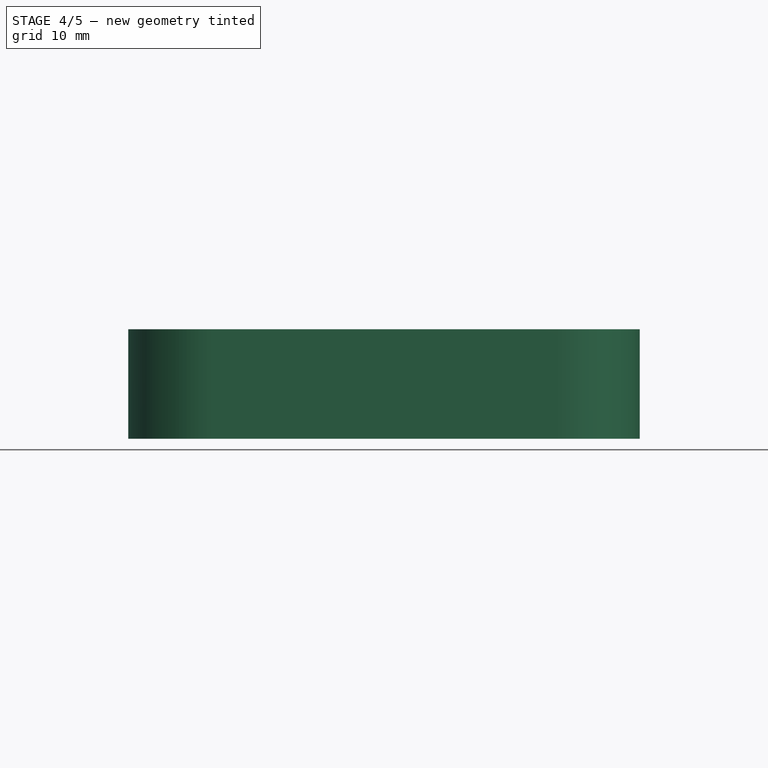
[diagram: stage 4 of 5 — front view after this stage's code; geometry added in this stage tinted green]
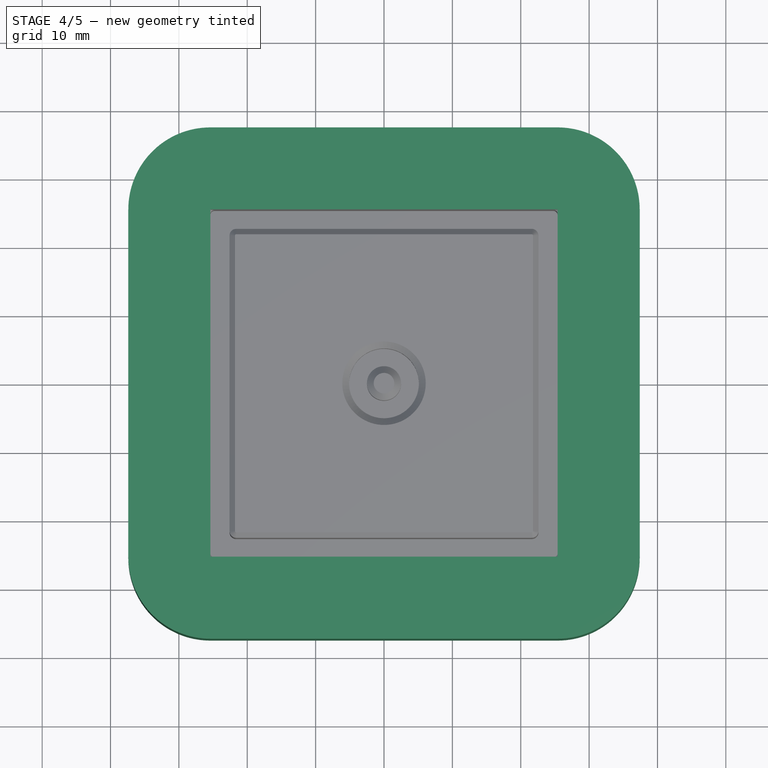
[diagram: stage 4 of 5 — top view after this stage's code; geometry added in this stage tinted green]
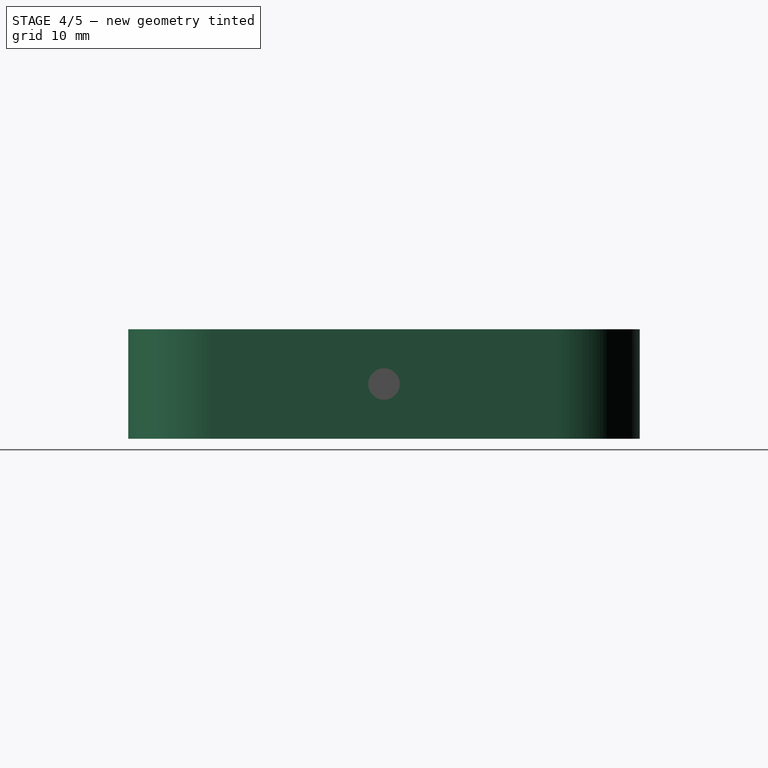
[diagram: stage 4 of 5 — right view after this stage's code; geometry added in this stage tinted green]
FEATURE [Sketcher::SketchObject] Sketch
  ArcFitTolerance = 0
  AttachmentSupport = -> [XY_Plane]
  FullyConstrained = true
  MakeInternals = false
  MapMode = 5
  expr: .Constraints.InnerSize = <<Spreadsheet>>.LegOuterSize
  sketch-geometry (14):
    g0: LineSegment StartX=-25.4 StartY=25.4 StartZ=0 EndX=25.4 EndY=25.4 EndZ=0
    g1: LineSegment StartX=25.4 StartY=25.4 StartZ=0 EndX=25.4 EndY=-25.4 EndZ=0
    g2: LineSegment StartX=25.4 StartY=-25.4 StartZ=0 EndX=-25.4 EndY=-25.4 EndZ=0
    g3: LineSegment StartX=-25.4 StartY=-25.4 StartZ=0 EndX=-25.4 EndY=25.4 EndZ=0
    g4: LineSegment StartX=-25.4 StartY=37.4 StartZ=0 EndX=25.4 EndY=37.4 EndZ=0
    g5: LineSegment StartX=37.4 StartY=25.4 StartZ=0 EndX=37.4 EndY=-25.4 EndZ=0
    g6: LineSegment StartX=25.4 StartY=-37.4 StartZ=0 EndX=-25.4 EndY=-37.4 EndZ=0
    g7: LineSegment StartX=-37.4 StartY=-25.4 StartZ=0 EndX=-37.4 EndY=25.4 EndZ=0
    g8: GeomPoint [constr] X=0 Y=0 Z=0
    g9: LineSegment [constr] StartX=-25.4 StartY=25.4 StartZ=0 EndX=-37.4 EndY=25.4 EndZ=0
    g10: ArcOfCircle CenterX=-25.4 CenterY=25.4 CenterZ=0 NormalX=0 NormalY=0 NormalZ=1 AngleXU=0 Radius=12 StartAngle=1.5708 EndAngle=3.14159
    g11: ArcOfCircle CenterX=25.4 CenterY=25.4 CenterZ=0 NormalX=0 NormalY=0 NormalZ=1 AngleXU=0 Radius=12 StartAngle=0 EndAngle=1.5708
    g12: ArcOfCircle CenterX=25.4 CenterY=-25.4 CenterZ=0 NormalX=0 NormalY=0 NormalZ=1 AngleXU=0 Radius=12 StartAngle=4.71239 EndAngle=6.28319
    g13: ArcOfCircle CenterX=-25.4 CenterY=-25.4 CenterZ=0 NormalX=0 NormalY=0 NormalZ=1 AngleXU=0 Radius=12 StartAngle=3.14159 EndAngle=4.71239
  constraints (35):
    c: Coincident(g0,g1)
    c: Coincident(g1,g2)
    c: Coincident(g2,g3)
    c: Coincident(g3,g0)
    c: Horizontal(g0)
    c: Horizontal(g2)
    c: Vertical(g1)
    c: Vertical(g3)
    c: DistanceX(g0,g0) = 50.8  'InnerSize'
    c: Equal(g0,g3)
    c: Horizontal(g4)
    c: Horizontal(g6)
    c: Vertical(g5)
    c: Vertical(g7)
    c: Symmetric(g2,g0,g8)
    c: Equal(g4,g7)
    c: Coincident(g8,g-1)
    c: Coincident(g9,g0)
    c: PointOnObject(g9,g7)
    c: Horizontal(g9)
    c: Tangent(g4,g10) = 1.5708
    c: Tangent(g7,g10) = 1.5708
    c: Tangent(g4,g11) = 1.5708
    c: Tangent(g5,g11) = 1.5708
    c: Tangent(g5,g12) = 1.5708
    c: Tangent(g6,g12) = 1.5708
    c: Tangent(g6,g13) = 1.5708
    c: Tangent(g7,g13) = 1.5708
    c: Equal(g11,g12)
    c: Equal(g12,g13)
    c: Coincident(g10,g0)
    c: Coincident(g11,g0)
    c: Coincident(g1,g12)
    c: DistanceX(g7,g4) = 12  'WallThickness'
    c: DistanceX(g7,g5) = 74.8  'OuterSize'
FEATURE [PartDesign::Pad] Pad
  Direction = (0,0,1)
  Length = 16
  Length2 = 10
  Profile = -> Sketch
  ReferenceAxis = -> Sketch [N_Axis]
  Suppressed = false
  Type = 0
FEATURE [Sketcher::SketchObject] Sketch001
  ArcFitTolerance = 0
  AttachmentOffset = pos=(0,0,25.4) rot=(0,0,1;0rad)
  AttachmentSupport = -> [YZ_Plane]
  FullyConstrained = true
  MakeInternals = false
  MapMode = 5
  Placement = pos=(25.4,0,0) rot=(0.57735,0.57735,0.57735;2.0944rad)
  expr: .AttachmentOffset.Base.z = <<Sketch>>.Constraints.InnerSize / 2
  expr: Constraints[2] = <<Pad>>.Length / 2
  sketch-geometry (1):
    g0: Circle CenterX=0 CenterY=8 CenterZ=0 NormalX=0 NormalY=0 NormalZ=1 AngleXU=0 Radius=2.3
  constraints (3):
    c: PointOnObject(g0,g-2)
    c: Radius(g0) = 2.3
    c: DistanceY(g-1,g0) = 8
FEATURE [PartDesign::Pocket] Pocket
  BaseFeature = -> Pad
  Direction = (-1,0,0)
  Length = 5
  Length2 = 5
  Profile = -> Sketch001
  ReferenceAxis = -> Sketch001 [N_Axis]
  Reversed = true
  Suppressed = false
  Type = 1
FEATURE [Sketcher::SketchObject] Sketch002
  ArcFitTolerance = 0
  AttachmentOffset = pos=(0,0,25.4) rot=(0,0,1;0rad)
  AttachmentSupport = -> [YZ_Plane]
  ExternalGeometry = -> [Sketch001]
  FullyConstrained = true
  MakeInternals = false
  MapMode = 5
  Placement = pos=(25.4,0,0) rot=(0.57735,0.57735,0.57735;2.0944rad)
  expr: .AttachmentOffset.Base.z = <<Sketch001>>.AttachmentOffset.Base.z
  sketch-geometry (7):
    g0: LineSegment StartX=4.1 StartY=8 StartZ=0 EndX=2.05 EndY=11.5507 EndZ=0
    g1: LineSegment StartX=2.05 StartY=11.5507 StartZ=0 EndX=-2.05 EndY=11.5507 EndZ=0
    g2: LineSegment StartX=-2.05 StartY=11.5507 StartZ=0 EndX=-4.1 EndY=8 EndZ=0
    g3: LineSegment StartX=-4.1 StartY=8 StartZ=0 EndX=-2.05 EndY=4.4493 EndZ=0
    g4: LineSegment StartX=-2.05 StartY=4.4493 StartZ=0 EndX=2.05 EndY=4.4493 EndZ=0
    g5: LineSegment StartX=2.05 StartY=4.4493 StartZ=0 EndX=4.1 EndY=8 EndZ=0
    g6: Circle [constr] CenterX=-2.8e-15 CenterY=8 CenterZ=0 NormalX=0 NormalY=0 NormalZ=1 AngleXU=0 Radius=4.1
  constraints (16):
    c: Coincident(g0,g1)
    c: Coincident(g1,g2)
    c: Coincident(g2,g3)
    c: Coincident(g3,g4)
    c: Coincident(g4,g5)
    c: Coincident(g5,g0)
    c: Equal(g0, g1-g5) x5
    c: PointOnObject(g0,g6)
    c: PointOnObject(g1,g6)
    c: PointOnObject(g2,g6)
    c: PointOnObject(g3,g6)
    c: PointOnObject(g4,g6)
    c: PointOnObject(g5,g6)
    c: Coincident(g6,g-3)
    c: Horizontal(g1)
    c: Radius(g6) = 4.1
FEATURE [PartDesign::Pocket] Pocket001
  BaseFeature = -> Pocket
  Direction = (-1,0,0)
  Length = 9.6
  Length2 = 5
  Profile = -> Sketch002
  ReferenceAxis = -> Sketch002 [N_Axis]
  Reversed = true
  Suppressed = false
  Type = 0
  expr: Length = <<Sketch>>.Constraints.WallThickness - 2.4 mm
FEATURE [PartDesign::Pocket] Pocket005  label="LE_BumperHole_"
  BaseFeature = -> SubtractiveLoft
  Direction = (0,0,-1)
  Length = 5
  Length2 = 5
  Profile = -> Sketch012
  ReferenceAxis = -> Sketch012 [N_Axis]
  Suppressed = false
  Type = 1
FEATURE [PartDesign::Fillet] Fillet
  Base = -> Pocket005 [Edge96,Edge127]
  BaseFeature = -> Pocket005
  Radius = 1.5
  SupportTransform = false
  Suppressed = false
  UseAllEdges = false
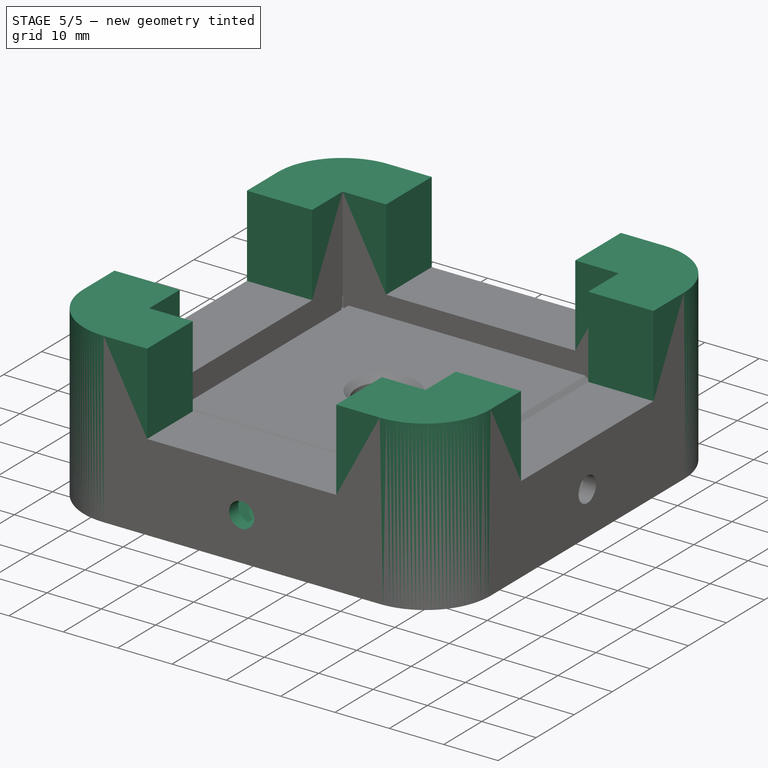
[diagram: stage 5 of 5 — iso view after this stage's code; geometry added in this stage tinted green]
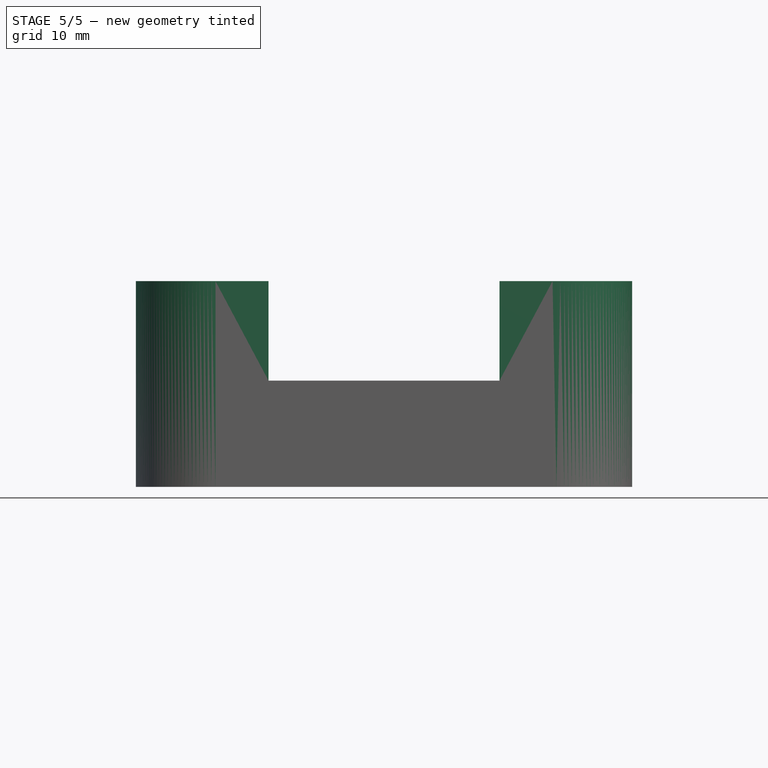
[diagram: stage 5 of 5 — front view after this stage's code; geometry added in this stage tinted green]
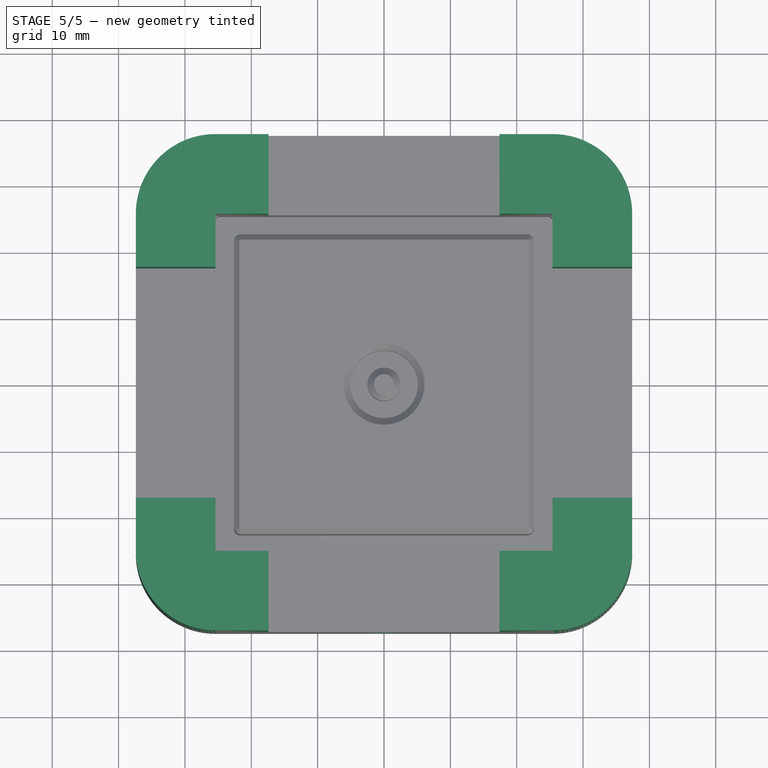
[diagram: stage 5 of 5 — top view after this stage's code; geometry added in this stage tinted green]
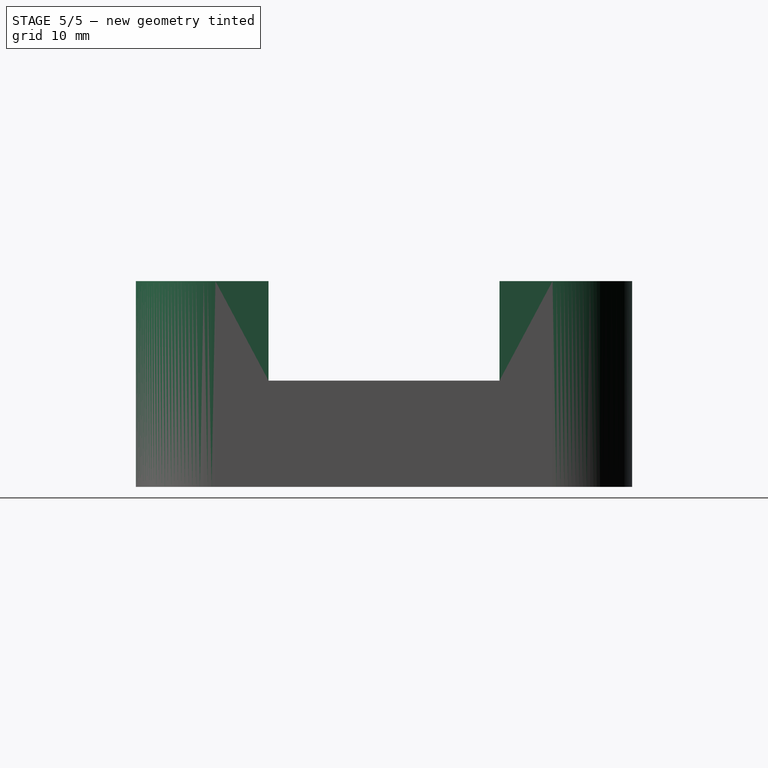
[diagram: stage 5 of 5 — right view after this stage's code; geometry added in this stage tinted green]
FEATURE [Sketcher::SketchObject] Sketch003
  ArcFitTolerance = 0
  AttachmentOffset = pos=(0,0,25.4) rot=(0,0,1;0rad)
  AttachmentSupport = -> [YZ_Plane]
  ExternalGeometry = -> [Sketch001]
  FullyConstrained = true
  MakeInternals = false
  MapMode = 5
  Placement = pos=(25.4,0,0) rot=(0.57735,0.57735,0.57735;2.0944rad)
  expr: .AttachmentOffset.Base.z = <<Sketch001>>.AttachmentOffset.Base.z
  sketch-geometry (1):
    g0: Circle CenterX=0 CenterY=8 CenterZ=0 NormalX=0 NormalY=0 NormalZ=1 AngleXU=0 Radius=5
  constraints (2):
    c: Coincident(g0,g-3)
    c: Radius(g0) = 5
FEATURE [PartDesign::Pocket] Pocket002
  BaseFeature = -> Pocket001
  Direction = (-1,0,0)
  Length = 6.2
  Length2 = 5
  Profile = -> Sketch003
  ReferenceAxis = -> Sketch003 [N_Axis]
  Reversed = true
  Suppressed = false
  Type = 0
  expr: Length = <<Pocket001>>.Length - 3.4 mm
FEATURE [Sketcher::SketchObject] Sketch004
  ArcFitTolerance = 0
  AttachmentSupport = -> [XY_Plane001]
  FullyConstrained = true
  MakeInternals = false
  MapMode = 5
  sketch-geometry (1):
    g0: Circle CenterX=0 CenterY=0 CenterZ=0 NormalX=0 NormalY=0 NormalZ=1 AngleXU=0 Radius=4.9
  constraints (2):
    c: Coincident(g0,g-1)
    c: Radius(g0) = 4.9
FEATURE [PartDesign::Pad] Pad001
  Direction = (0,0,1)
  Length = 5.2
  Length2 = 10
  Profile = -> Sketch004
  ReferenceAxis = -> Sketch004 [N_Axis]
  Suppressed = false
  Type = 0
  expr: Length = <<Pocket002>>.Length - 1 mm
FEATURE [Sketcher::SketchObject] Sketch005
  ArcFitTolerance = 0
  AttachmentOffset = pos=(0,0,5.2) rot=(0,0,1;0rad)
  AttachmentSupport = -> [XY_Plane001]
  FullyConstrained = true
  MakeInternals = false
  MapMode = 5
  Placement = pos=(0,0,5.2) rot=(0,0,1;0rad)
  expr: .AttachmentOffset.Base.z = <<Pad001>>.Length
  sketch-geometry (1):
    g0: Circle CenterX=0 CenterY=0 CenterZ=0 NormalX=0 NormalY=0 NormalZ=1 AngleXU=0 Radius=2.2
  constraints (2):
    c: Radius(g0) = 2.2
    c: Coincident(g0,g-1)
FEATURE [PartDesign::Pocket] Pocket003
  BaseFeature = -> Pad001
  Direction = (0,0,-1)
  Length = 1.2
  Length2 = 5
  Profile = -> Sketch005
  ReferenceAxis = -> Sketch005 [N_Axis]
  Suppressed = false
  Type = 0
FEATURE [PartDesign::Body] Body001  label="LegCutToolButton"
  AllowCompound = false
  Group = -> [Sketch004,Pad001,Sketch005,Pocket003]
  Origin = -> Origin001
  Tip = -> Pocket003
FEATURE [Spreadsheet::Sheet] Spreadsheet
  cells = B2='LegOuterSize; C2(LegOuterSize)==50.8 mm; B3='LegInnerSize; C3(LegInnerSize)==45.2 mm
FEATURE [Sketcher::SketchObject] Sketch006
  ArcFitTolerance = 0
  AttachmentOffset = pos=(0,0,16) rot=(0,0,1;0rad)
  AttachmentSupport = -> [XY_Plane]
  ExternalGeometry = -> [Sketch]
  FullyConstrained = true
  MakeInternals = false
  MapMode = 5
  Placement = pos=(0,0,16) rot=(0,0,1;0rad)
  expr: .AttachmentOffset.Base.z = <<Pad>>.Length
  sketch-geometry (7):
    g0: LineSegment StartX=-17.4 StartY=37.4 StartZ=0 EndX=-17.4 EndY=25.4 EndZ=0
    g1: LineSegment StartX=-17.4 StartY=25.4 StartZ=0 EndX=-25.4 EndY=25.4 EndZ=0
    g2: LineSegment StartX=-25.4 StartY=25.4 StartZ=0 EndX=-25.4 EndY=17.4 EndZ=0
    g3: LineSegment StartX=-25.4 StartY=17.4 StartZ=0 EndX=-37.4 EndY=17.4 EndZ=0
    g4: LineSegment StartX=-37.4 StartY=17.4 StartZ=0 EndX=-37.4 EndY=25.4 EndZ=0
    g5: LineSegment StartX=-17.4 StartY=37.4 StartZ=0 EndX=-25.4 EndY=37.4 EndZ=0
    g6: ArcOfCircle CenterX=-25.4 CenterY=25.4 CenterZ=0 NormalX=0 NormalY=0 NormalZ=1 AngleXU=0 Radius=12 StartAngle=1.5708 EndAngle=3.14159
  constraints (19):
    c: PointOnObject(g0,g-5)
    c: PointOnObject(g0,g-6)
    c: Vertical(g0)
    c: Coincident(g0,g1)
    c: Coincident(g1,g-7)
    c: Coincident(g1,g2)
    c: PointOnObject(g2,g-7)
    c: Coincident(g2,g3)
    c: PointOnObject(g3,g-4)
    c: Horizontal(g3)
    c: Coincident(g3,g4)
    c: Coincident(g4,g-4)
    c: Coincident(g0,g5)
    c: Coincident(g5,g-5)
    c: Coincident(g6,g4)
    c: Coincident(g6,g5)
    c: Equal(g6,g-3)
    c: Equal(g4,g5)
    c: DistanceX(g5,g5) = 8
FEATURE [PartDesign::Pad] Pad002
  BaseFeature = -> Pocket002
  Direction = (0,0,1)
  Length = 15
  Length2 = 10
  Profile = -> Sketch006
  ReferenceAxis = -> Sketch006 [N_Axis]
  Suppressed = false
  Type = 0
FEATURE [PartDesign::PolarPattern] PolarPattern
  Angle = 360
  Axis = -> Z_Axis
  BaseFeature = -> Pad002
  Mode = 0
  Occurrences = 4
  Offset = 120
  Originals = -> [Pocket,Pocket001,Pocket002,Pad002]
  Refine = true
  Suppressed = false
  TransformMode = 0
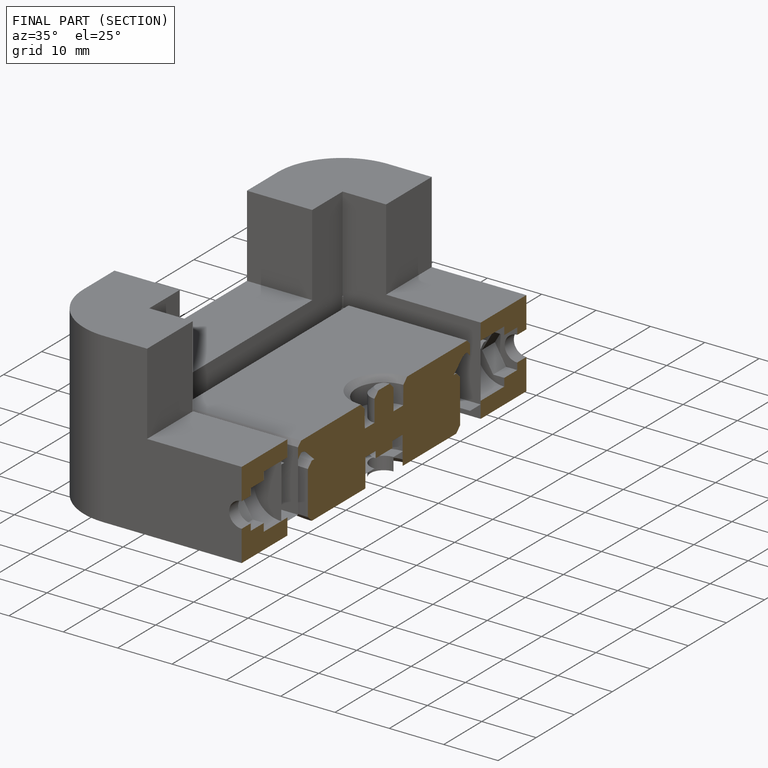
[diagram: finished part — half-section view (interior)]
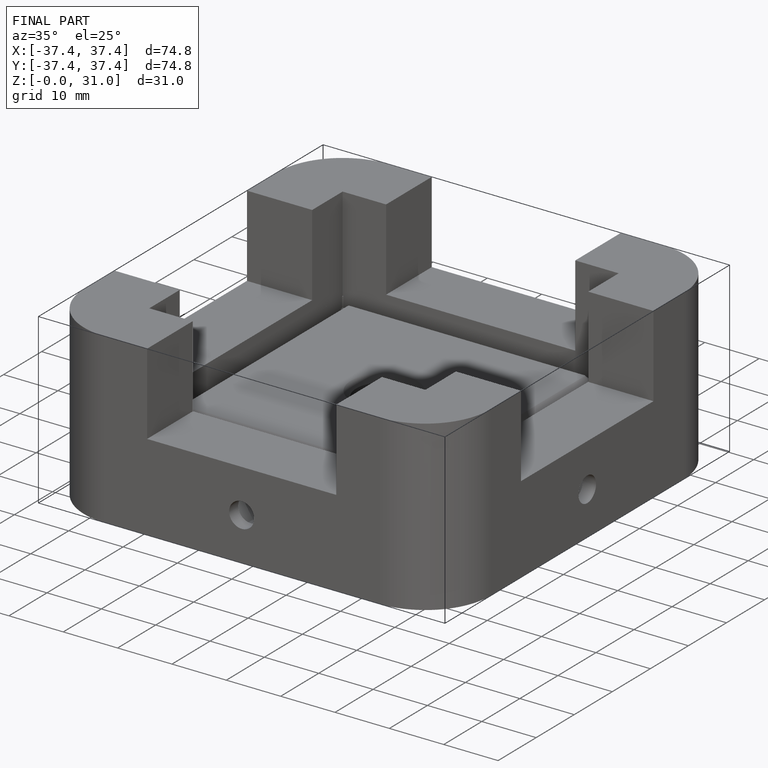
[diagram: finished part — iso view with bounding-box wireframe]
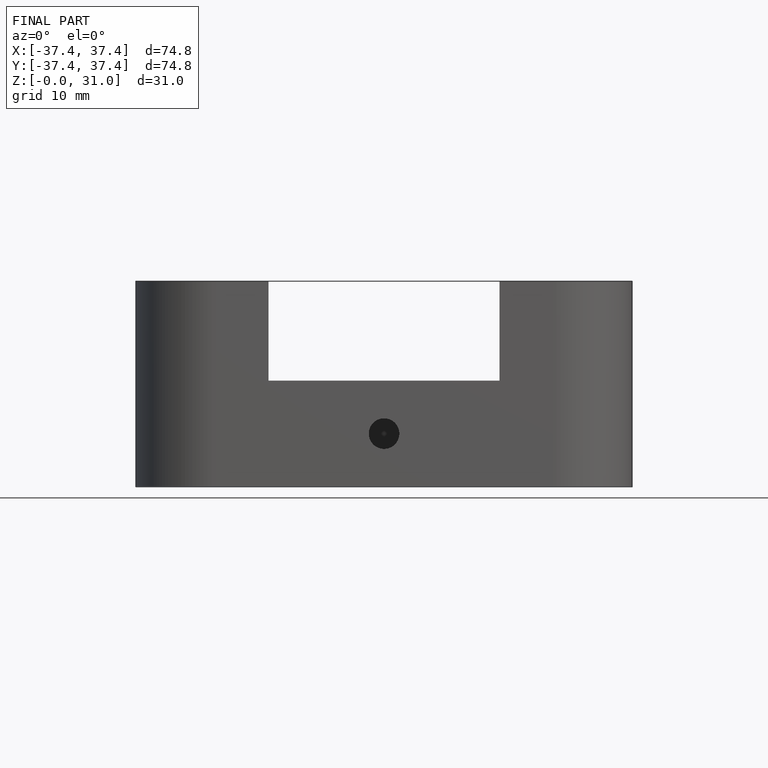
[diagram: finished part — front view with bounding-box wireframe]
